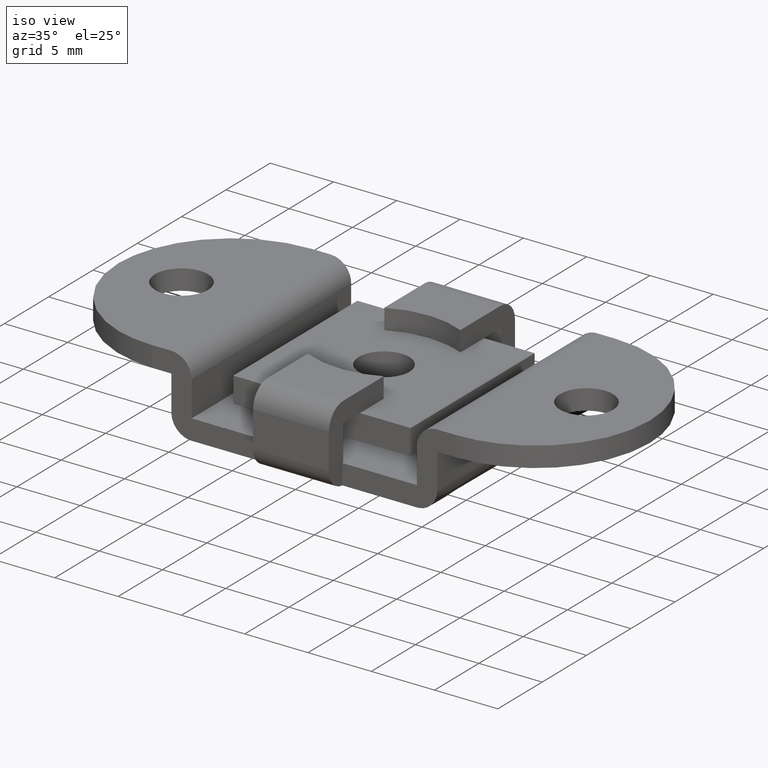
[diagram: clean part render]
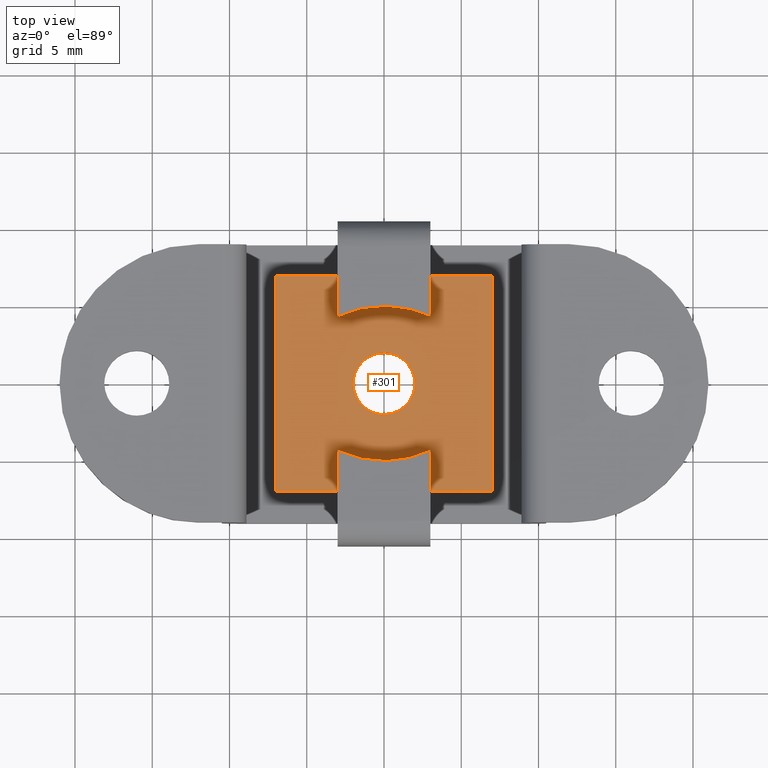
[diagram: tour spotlight — one face highlighted and labeled with its STEP entity id]
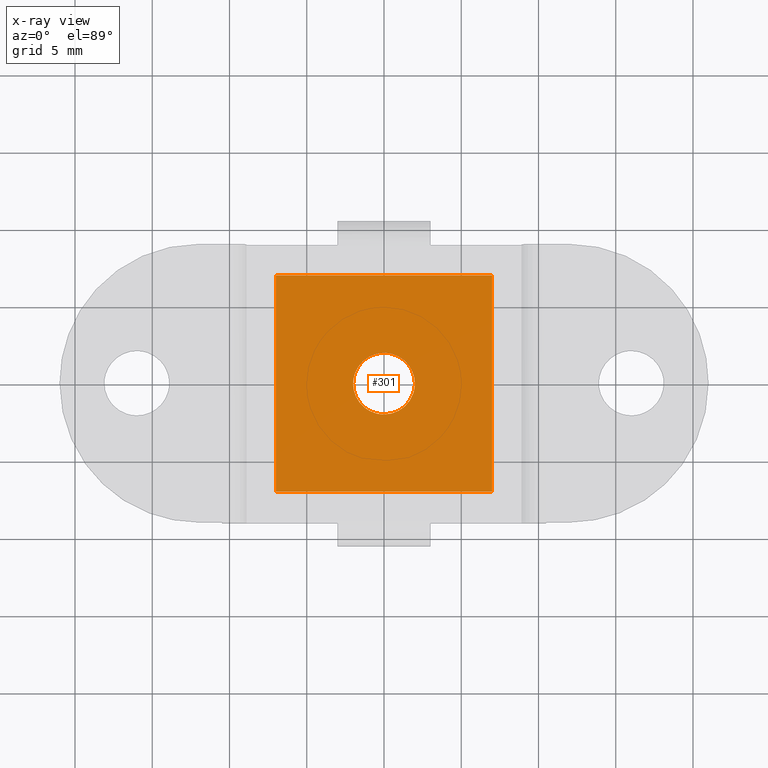
[diagram: x-ray of the same camera — body ghosted, this tour face saturated]
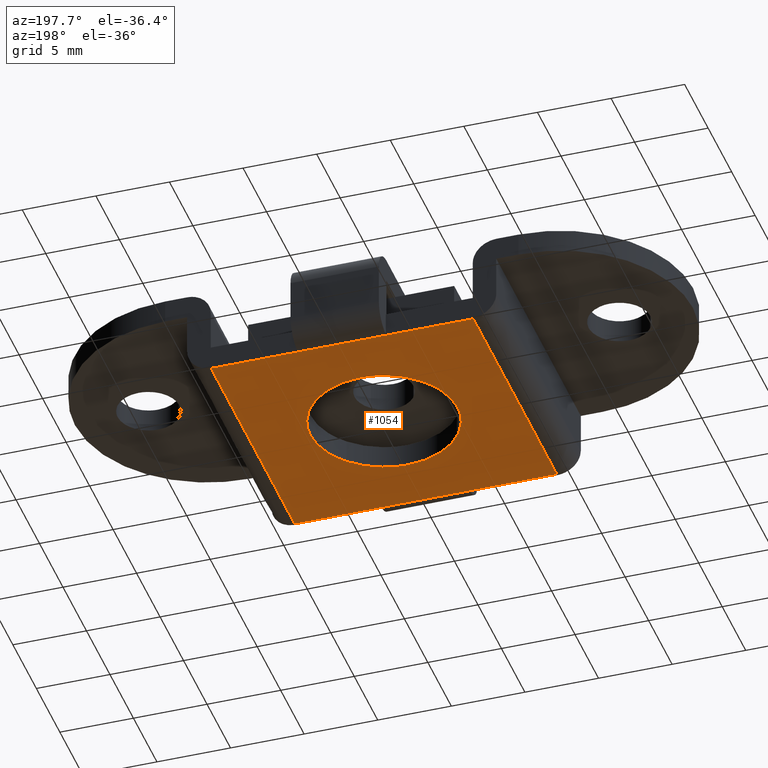
[diagram: tour spotlight — one face highlighted and labeled with its STEP entity id]
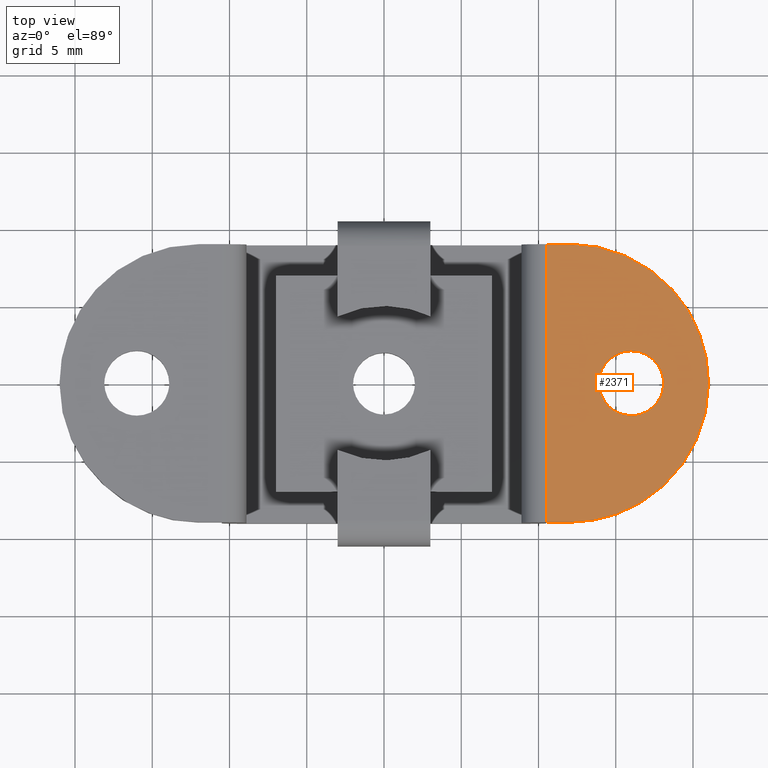
[diagram: tour spotlight — one face highlighted and labeled with its STEP entity id]
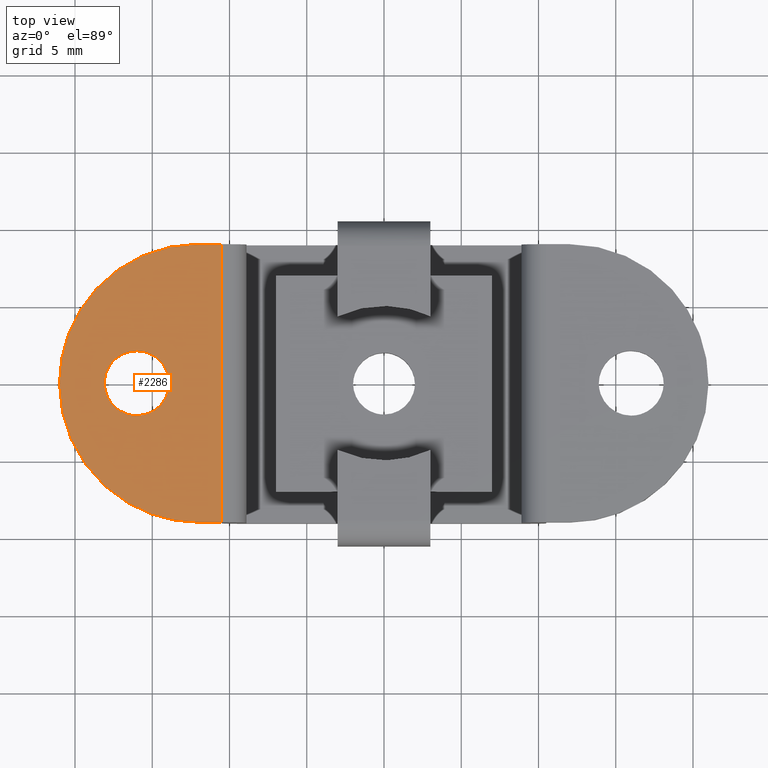
[diagram: tour spotlight — one face highlighted and labeled with its STEP entity id]
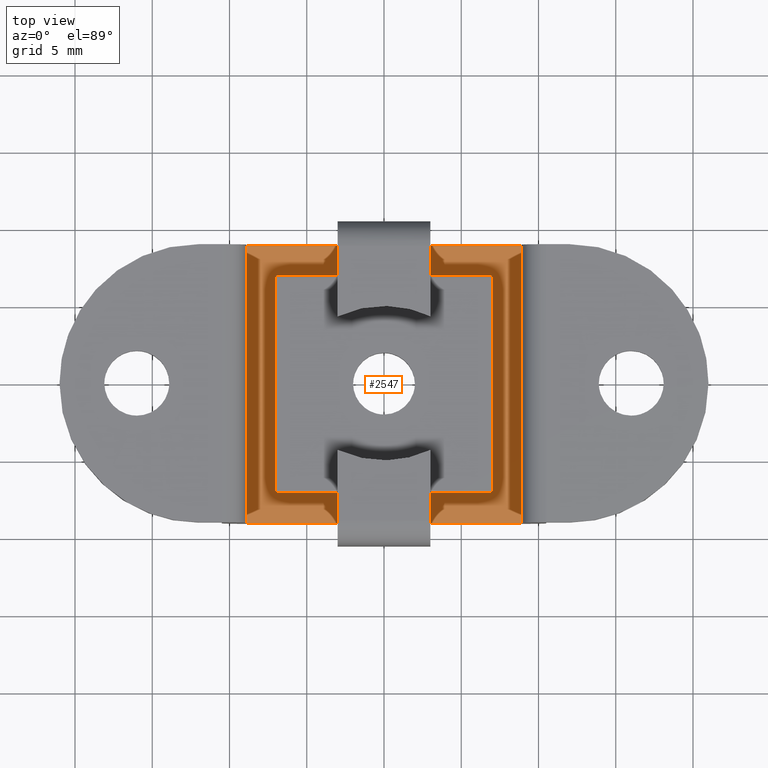
[diagram: tour spotlight — one face highlighted and labeled with its STEP entity id]
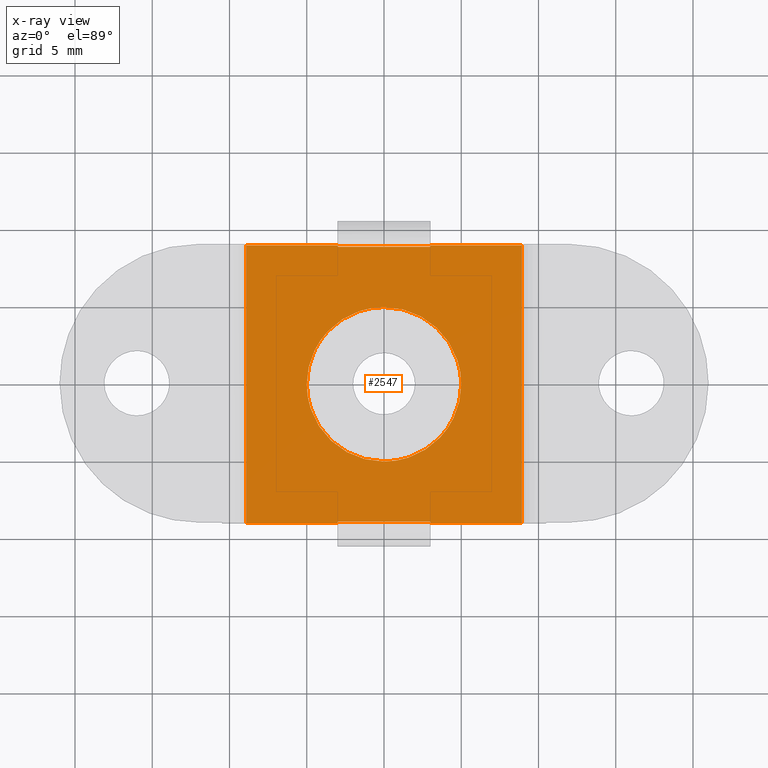
[diagram: x-ray of the same camera — body ghosted, this tour face saturated]
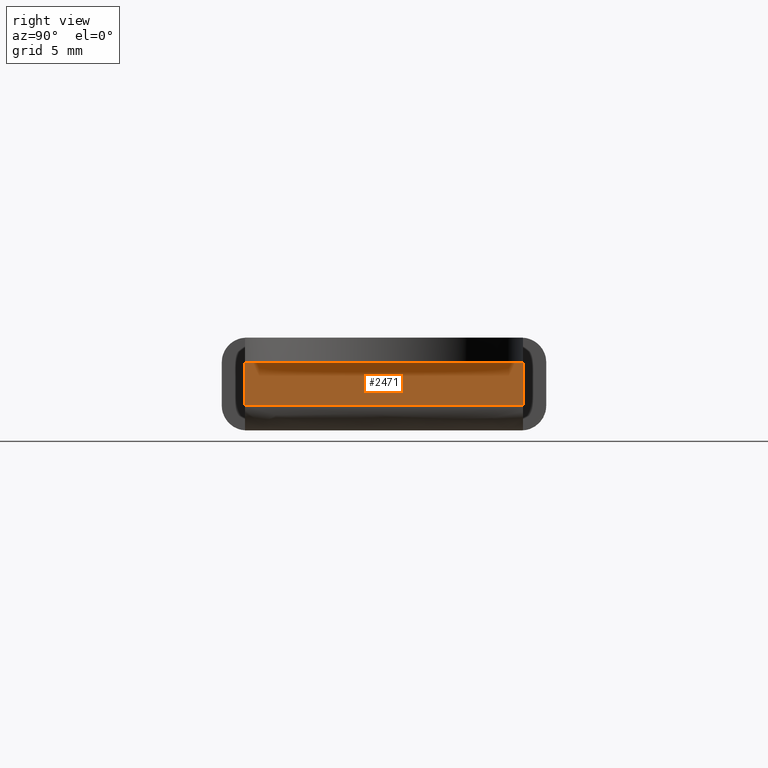
[diagram: tour spotlight — one face highlighted and labeled with its STEP entity id]
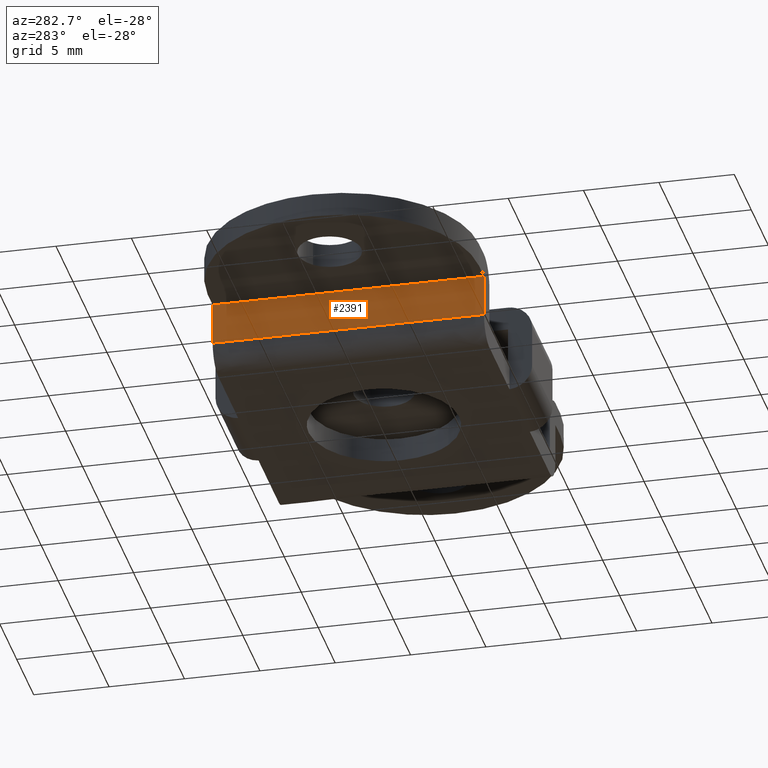
[diagram: tour spotlight — one face highlighted and labeled with its STEP entity id]
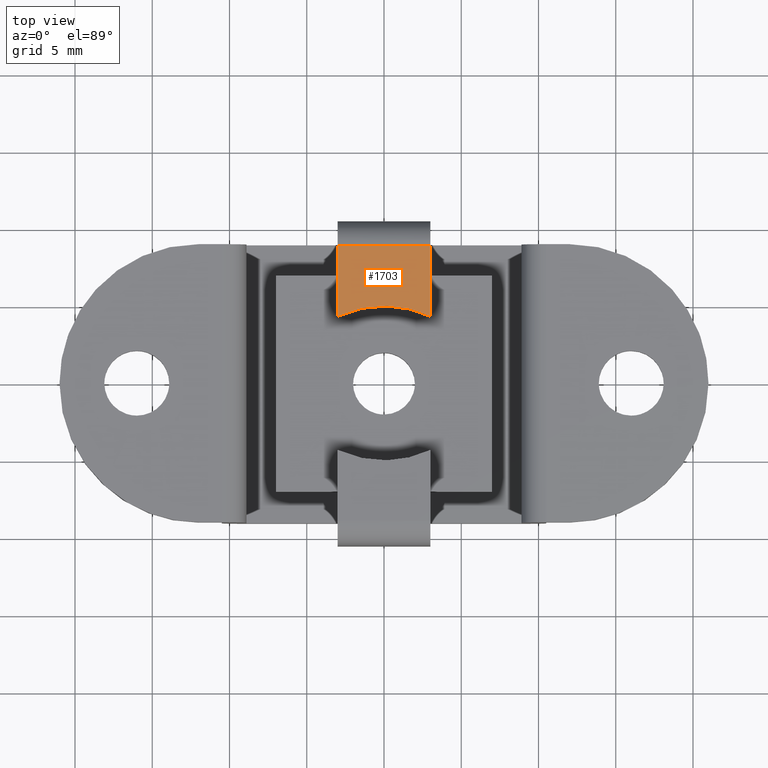
[diagram: tour spotlight — one face highlighted and labeled with its STEP entity id]
A machine part: a face-by-face anatomy tour. The part has 52 B-rep faces; the first image is the clean iso view, then the 8 largest visible faces are spotlighted one at a time (largest first), each with its STEP entity span.

Face 1 — top view, entity #301. An x-ray twin of the same camera follows (body ghosted, this face saturated) — the face is partly hidden behind the body. In plain terms, the highlighted face is a freeform B-spline surface patch.
Definition (entity closure, byte-faithful):
#64=CARTESIAN_POINT('',(1.351180487566418,-1.474554782602426,4.400000000000000));
#65=VERTEX_POINT('',#64);
#71=CARTESIAN_POINT('',(2.0,0.0,4.400000000000000));
#72=VERTEX_POINT('',#71);
#73=CARTESIAN_POINT('',(1.351180487566418,-1.474554782602426,4.400000000000000));
#74=CARTESIAN_POINT('',(1.459434956353504,-1.375388385996986,4.400000000000000));
#75=CARTESIAN_POINT('',(1.648226956466205,-1.159614940922242,4.400000000000006));
#76=CARTESIAN_POINT('',(1.854139141784489,-0.787336147316812,4.399999999999992));
#77=CARTESIAN_POINT('',(1.973906876970808,-0.397242263438106,4.400000000000010));
#78=CARTESIAN_POINT('',(2.000013820897323,-0.129536868906021,4.399999999999989));
#79=CARTESIAN_POINT('',(2.0,0.0,4.400000000000000));
#80=B_SPLINE_CURVE_WITH_KNOTS('',3,(#73,#74,#75,#76,#77,#78,#79),.UNSPECIFIED.,.F.,.U.,(4,1,1,1,4),(0.000000014151104,0.440426449850594,0.854937265086252,1.269463670213340,1.658074454876654),.UNSPECIFIED.);
#81=EDGE_CURVE('',#65,#72,#80,.T.);
#83=CARTESIAN_POINT('',(-0.000000518850291,1.999999999999933,4.400000000000000));
#84=VERTEX_POINT('',#83);
#85=CARTESIAN_POINT('',(2.0,0.0,4.400000000000000));
#86=CARTESIAN_POINT('',(2.000125272684084,0.212730369597694,4.400000000000007));
#87=CARTESIAN_POINT('',(1.947276652883236,0.539895710082316,4.399999999999999));
#88=CARTESIAN_POINT('',(1.779004922701553,0.932347028074610,4.400000000000002));
#89=CARTESIAN_POINT('',(1.590298404869592,1.230373634891019,4.399999999999998));
#90=CARTESIAN_POINT('',(1.373407912367068,1.466743427931498,4.400000000000006));
#91=CARTESIAN_POINT('',(1.095545465897606,1.683589619374116,4.399999999999990));
#92=CARTESIAN_POINT('',(0.850678156236381,1.818357956040366,4.399999999999974));
#93=CARTESIAN_POINT('',(0.474460972035872,1.958219444746794,4.400000000000017));
#94=CARTESIAN_POINT('',(0.204546773724535,2.000111577101551,4.400000000000013));
#95=CARTESIAN_POINT('',(-0.000000518850291,1.999999999999933,4.400000000000000));
#96=B_SPLINE_CURVE_WITH_KNOTS('',3,(#85,#86,#87,#88,#89,#90,#91,#92,#93,#94,#95),.UNSPECIFIED.,.F.,.U.,(4,1,1,1,1,1,1,1,4),(0.000000047114152,0.638138985832025,0.981755047691077,1.276282253819380,1.693512718911984,1.938962087718916,2.331665222778876,2.528020306702318,3.141612658188444),.UNSPECIFIED.);
#97=EDGE_CURVE('',#72,#84,#96,.T.);
#99=CARTESIAN_POINT('',(-1.351180487566412,1.474554782602420,4.400000000000000));
#100=VERTEX_POINT('',#99);
#101=CARTESIAN_POINT('',(-0.000000518850291,1.999999999999933,4.400000000000000));
#102=CARTESIAN_POINT('',(-0.216372920081346,2.000145730853857,4.399999999999998));
#103=CARTESIAN_POINT('',(-0.540798161024883,1.946793413828000,4.399999999999997));
#104=CARTESIAN_POINT('',(-0.996675290126308,1.750987424910407,4.399999999999995));
#105=CARTESIAN_POINT('',(-1.225881023420056,1.589437802582806,4.400000000000013));
#106=CARTESIAN_POINT('',(-1.351180487566412,1.474554782602420,4.400000000000000));
#107=B_SPLINE_CURVE_WITH_KNOTS('',3,(#101,#102,#103,#104,#105,#106),.UNSPECIFIED.,.F.,.U.,(4,1,1,4),(0.000000010568958,0.649053716328180,0.973569387800946,1.483537675976727),.UNSPECIFIED.);
#108=EDGE_CURVE('',#84,#100,#107,.T.);
#149=CARTESIAN_POINT('',(-2.0,0.0,4.400000000000000));
#150=VERTEX_POINT('',#149);
#151=CARTESIAN_POINT('',(-1.351180487566412,1.474554782602420,4.400000000000000));
#152=CARTESIAN_POINT('',(-1.459434966422765,1.375388384878932,4.400000000000000));
#153=CARTESIAN_POINT('',(-1.648226902440376,1.159614898733438,4.400000000000000));
#154=CARTESIAN_POINT('',(-1.854139271044690,0.787336238413096,4.399999999999989));
#155=CARTESIAN_POINT('',(-1.973906756021458,0.397242237387524,4.400000000000041));
#156=CARTESIAN_POINT('',(-2.000013939165571,0.129536852767964,4.399999999999950));
#157=CARTESIAN_POINT('',(-2.0,0.0,4.400000000000000));
#158=B_SPLINE_CURVE_WITH_KNOTS('',3,(#151,#152,#153,#154,#155,#156,#157),.UNSPECIFIED.,.F.,.U.,(4,1,1,1,4),(0.000000014151041,0.440426449850542,0.854937265086217,1.269463670213322,1.658074454876651),.UNSPECIFIED.);
#159=EDGE_CURVE('',#100,#150,#158,.T.);
#161=CARTESIAN_POINT('',(0.000000518850326,-1.999999999999933,4.400000000000000));
#162=VERTEX_POINT('',#161);
#163=CARTESIAN_POINT('',(-2.0,0.0,4.400000000000000));
#164=CARTESIAN_POINT('',(-2.000035840705778,-0.155444937833248,4.400000000000009));
#165=CARTESIAN_POINT('',(-1.966439067817386,-0.441769275213017,4.399999999999989));
#166=CARTESIAN_POINT('',(-1.819386238457925,-0.869336198897017,4.400000000000007));
#167=CARTESIAN_POINT('',(-1.598843479674865,-1.227228815093508,4.400000000000006));
#168=CARTESIAN_POINT('',(-1.268154482304708,-1.570361708533407,4.399999999999991));
#169=CARTESIAN_POINT('',(-0.885719721066033,-1.815849755062513,4.400000000000021));
#170=CARTESIAN_POINT('',(-0.433591537164645,-1.968230859623952,4.399999999999952));
#171=CARTESIAN_POINT('',(-0.147262423949933,-2.000022840850602,4.400000000000031));
#172=CARTESIAN_POINT('',(0.000000518850326,-1.999999999999933,4.400000000000000));
#173=B_SPLINE_CURVE_WITH_KNOTS('',3,(#163,#164,#165,#166,#167,#168,#169,#170,#171,#172),.UNSPECIFIED.,.F.,.U.,(4,1,1,1,1,1,1,4),(0.000000047113517,0.466327554555518,0.859035971532163,1.349914260320921,1.718068675593460,2.282577635544291,2.699826096089002,3.141612658188471),.UNSPECIFIED.);
#174=EDGE_CURVE('',#150,#162,#173,.T.);
#176=CARTESIAN_POINT('',(0.000000518850326,-1.999999999999933,4.400000000000000));
#177=CARTESIAN_POINT('',(0.185450035379458,-2.000065400917898,4.399999999999999));
#178=CARTESIAN_POINT('',(0.471294441097113,-1.959941302158816,4.400000000000019));
#179=CARTESIAN_POINT('',(0.936560750189208,-1.788259469791923,4.399999999999976));
#180=CARTESIAN_POINT('',(1.197433168365320,-1.615598168457326,4.400000000000029));
#181=CARTESIAN_POINT('',(1.351180487566418,-1.474554782602426,4.400000000000000));
#182=B_SPLINE_CURVE_WITH_KNOTS('',3,(#176,#177,#178,#179,#180,#181),.UNSPECIFIED.,.F.,.U.,(4,1,1,4),(0.000000010568906,0.556326805501515,0.857667739118593,1.483537675976697),.UNSPECIFIED.);
#183=EDGE_CURVE('',#162,#65,#182,.T.);
#258=CARTESIAN_POINT('',(-7.699299972865284,7.699299972865378,4.400000000000000));
#259=CARTESIAN_POINT('',(7.699300348374545,7.699299972865378,4.400000000000000));
#260=CARTESIAN_POINT('',(-7.699299972865284,-7.699300348374552,4.400000000000000));
#261=CARTESIAN_POINT('',(7.699300348374545,-7.699300348374552,4.400000000000000));
#262=B_SPLINE_SURFACE_WITH_KNOTS('',1,1,((#258,#260),(#259,#261)),.UNSPECIFIED.,.F.,.F.,.U.,(2,2),(2,2),(0.0,15.398600321239829),(0.0,15.398600321239931),.UNSPECIFIED.);
#263=CARTESIAN_POINT('',(7.0,-7.0,4.400000000000000));
#264=VERTEX_POINT('',#263);
#265=CARTESIAN_POINT('',(7.0,7.000000000000091,4.400000000000000));
#266=VERTEX_POINT('',#265);
#267=CARTESIAN_POINT('',(7.0,-7.0,4.400000000000000));
#268=CARTESIAN_POINT('',(7.0,7.000000000000091,4.400000000000000));
#269=QUASI_UNIFORM_CURVE('',1,(#267,#268),.UNSPECIFIED.,.F.,.U.);
#270=EDGE_CURVE('',#264,#266,#269,.T.);
#271=ORIENTED_EDGE('',*,*,#270,.T.);
#272=CARTESIAN_POINT('',(-7.0,7.000000000000091,4.400000000000000));
#273=VERTEX_POINT('',#272);
#274=CARTESIAN_POINT('',(7.0,7.000000000000091,4.400000000000000));
#275=CARTESIAN_POINT('',(-7.0,7.000000000000091,4.400000000000000));
#276=QUASI_UNIFORM_CURVE('',1,(#274,#275),.UNSPECIFIED.,.F.,.U.);
#277=EDGE_CURVE('',#266,#273,#276,.T.);
#278=ORIENTED_EDGE('',*,*,#277,.T.);
#279=CARTESIAN_POINT('',(-7.0,-7.0,4.400000000000000));
#280=VERTEX_POINT('',#279);
#281=CARTESIAN_POINT('',(-7.0,7.000000000000091,4.400000000000000));
#282=CARTESIAN_POINT('',(-7.0,-7.0,4.400000000000000));
#283=QUASI_UNIFORM_CURVE('',1,(#281,#282),.UNSPECIFIED.,.F.,.U.);
#284=EDGE_CURVE('',#273,#280,#283,.T.);
#285=ORIENTED_EDGE('',*,*,#284,.T.);
#286=CARTESIAN_POINT('',(-7.0,-7.0,4.400000000000000));
#287=CARTESIAN_POINT('',(7.0,-7.0,4.400000000000000));
#288=QUASI_UNIFORM_CURVE('',1,(#286,#287),.UNSPECIFIED.,.F.,.U.);
#289=EDGE_CURVE('',#280,#264,#288,.T.);
#290=ORIENTED_EDGE('',*,*,#289,.T.);
#291=EDGE_LOOP('',(#271,#278,#285,#290));
#292=FACE_OUTER_BOUND('',#291,.T.);
#293=ORIENTED_EDGE('',*,*,#174,.F.);
#294=ORIENTED_EDGE('',*,*,#159,.F.);
#295=ORIENTED_EDGE('',*,*,#108,.F.);
#296=ORIENTED_EDGE('',*,*,#97,.F.);
#297=ORIENTED_EDGE('',*,*,#81,.F.);
#298=ORIENTED_EDGE('',*,*,#183,.F.);
#299=EDGE_LOOP('',(#293,#294,#295,#296,#297,#298));
#300=FACE_BOUND('',#299,.T.);
#301=ADVANCED_FACE('',(#292,#300),#262,.F.);

Face 2 — auxiliary view, entity #1054. In plain terms, the highlighted face is a freeform B-spline surface patch.
Definition (entity closure, byte-faithful):
#594=CARTESIAN_POINT('',(3.626871793444205,-3.441772825803209,1.732847E-012));
#595=VERTEX_POINT('',#594);
#596=CARTESIAN_POINT('',(-0.000000324236915,-4.999999999999989,0.0));
#597=VERTEX_POINT('',#596);
#598=CARTESIAN_POINT('',(3.626871793444205,-3.441772825803209,1.732847E-012));
#599=CARTESIAN_POINT('',(3.423215406721647,-3.656422929322394,1.635544E-012));
#600=CARTESIAN_POINT('',(2.977634978754980,-4.049393712816439,1.422654E-012));
#601=CARTESIAN_POINT('',(2.242925987740639,-4.495113645645178,1.071625E-012));
#602=CARTESIAN_POINT('',(1.533339453622273,-4.776247336540807,7.325989E-013));
#603=CARTESIAN_POINT('',(0.792547160313471,-4.955773697101916,3.786632E-013));
#604=CARTESIAN_POINT('',(0.295889655508276,-5.000031321960930,1.413703E-013));
#605=CARTESIAN_POINT('',(-0.000000324236915,-4.999999999999989,0.0));
#606=B_SPLINE_CURVE_WITH_KNOTS('',3,(#598,#599,#600,#601,#602,#603,#604,#605),.UNSPECIFIED.,.F.,.U.,(4,1,1,1,1,4),(7.543394E-009,0.887664570450514,1.775335467180066,2.567887494586449,3.170233032252343,4.057897595160039),.UNSPECIFIED.);
#607=EDGE_CURVE('',#595,#597,#606,.T.);
#609=CARTESIAN_POINT('',(-5.0,0.0,0.0));
#610=VERTEX_POINT('',#609);
#611=CARTESIAN_POINT('',(-0.000000324236915,-4.999999999999989,0.0));
#612=CARTESIAN_POINT('',(-0.460212270313453,-5.000151425749215,0.0));
#613=CARTESIAN_POINT('',(-1.145302321775578,-4.904740234089545,0.0));
#614=CARTESIAN_POINT('',(-1.955935730597478,-4.614576344565321,0.0));
#615=CARTESIAN_POINT('',(-2.643068629899349,-4.271434348390238,0.0));
#616=CARTESIAN_POINT('',(-3.268439175093524,-3.819375680652176,0.0));
#617=CARTESIAN_POINT('',(-3.929981199658527,-3.133034108355920,0.0));
#618=CARTESIAN_POINT('',(-4.377741891687538,-2.467352349573585,0.0));
#619=CARTESIAN_POINT('',(-4.708041492092798,-1.728205650504709,0.0));
#620=CARTESIAN_POINT('',(-4.936021967824107,-0.951043263126143,0.0));
#621=CARTESIAN_POINT('',(-5.000064047398016,-0.357932923622321,0.0));
#622=CARTESIAN_POINT('',(-5.0,0.0,0.0));
#623=B_SPLINE_CURVE_WITH_KNOTS('',3,(#611,#612,#613,#614,#615,#616,#617,#618,#619,#620,#621,#622),.UNSPECIFIED.,.F.,.U.,(4,1,1,1,1,1,1,1,1,4),(0.000000026666211,1.380583045920688,2.055538306480571,2.577092645472697,3.681570689012800,4.356499960044744,5.430296533139000,6.074573718913661,6.780210716973892,7.853993771847659),.UNSPECIFIED.);
#624=EDGE_CURVE('',#597,#610,#623,.T.);
#626=CARTESIAN_POINT('',(-3.626871793444213,3.441772825803218,1.732847E-012));
#627=VERTEX_POINT('',#626);
#628=CARTESIAN_POINT('',(-5.0,0.0,0.0));
#629=CARTESIAN_POINT('',(-5.000053494405858,0.336117840370970,1.692269E-013));
#630=CARTESIAN_POINT('',(-4.949957881565231,0.830377166425589,4.180741E-013));
#631=CARTESIAN_POINT('',(-4.769392439909037,1.540135160160426,7.754195E-013));
#632=CARTESIAN_POINT('',(-4.569861967764408,2.058024385329718,1.036164E-012));
#633=CARTESIAN_POINT('',(-4.209040209419705,2.740461956833875,1.379754E-012));
#634=CARTESIAN_POINT('',(-3.885524559924932,3.169333928384033,1.595680E-012));
#635=CARTESIAN_POINT('',(-3.626871793444213,3.441772825803218,1.732847E-012));
#636=B_SPLINE_CURVE_WITH_KNOTS('',3,(#628,#629,#630,#631,#632,#633,#634,#635),.UNSPECIFIED.,.F.,.U.,(4,1,1,1,1,4),(1.770243E-009,1.008342617228866,1.482857122155396,2.194627639680285,2.669142148203799,3.796113354029980),.UNSPECIFIED.);
#637=EDGE_CURVE('',#610,#627,#636,.T.);
#714=CARTESIAN_POINT('',(5.0,0.0,0.0));
#715=VERTEX_POINT('',#714);
#716=CARTESIAN_POINT('',(5.0,0.0,0.0));
#717=CARTESIAN_POINT('',(5.000046704887869,-0.336115439864950,1.692257E-013));
#718=CARTESIAN_POINT('',(4.937957138354636,-0.949007422992705,4.778015E-013));
#719=CARTESIAN_POINT('',(4.676071234564541,-1.843939069947303,9.283772E-013));
#720=CARTESIAN_POINT('',(4.259448828601072,-2.679249389514588,1.348935E-012));
#721=CARTESIAN_POINT('',(3.858270978848668,-3.197994253214128,1.610110E-012));
#722=CARTESIAN_POINT('',(3.626871793444205,-3.441772825803209,1.732847E-012));
#723=B_SPLINE_CURVE_WITH_KNOTS('',3,(#716,#717,#718,#719,#720,#721,#722),.UNSPECIFIED.,.F.,.U.,(4,1,1,1,4),(1.770428E-009,1.008342617229010,1.838742576036139,2.787770738571724,3.796113354029975),.UNSPECIFIED.);
#724=EDGE_CURVE('',#715,#595,#723,.T.);
#769=CARTESIAN_POINT('',(0.000000324236865,4.999999999999989,0.0));
#770=VERTEX_POINT('',#769);
#771=CARTESIAN_POINT('',(-3.626871793444213,3.441772825803218,1.732847E-012));
#772=CARTESIAN_POINT('',(-3.314173550342795,3.771486077850311,1.583446E-012));
#773=CARTESIAN_POINT('',(-2.714635786249023,4.251348625751513,1.296999E-012));
#774=CARTESIAN_POINT('',(-1.815060463509833,4.682479856218651,8.671995E-013));
#775=CARTESIAN_POINT('',(-0.951045729116754,4.935921547258900,4.543907E-013));
#776=CARTESIAN_POINT('',(-0.359297670771100,5.000064893102014,1.716654E-013));
#777=CARTESIAN_POINT('',(0.000000324236865,4.999999999999989,0.0));
#778=B_SPLINE_CURVE_WITH_KNOTS('',3,(#771,#772,#773,#774,#775,#776,#777),.UNSPECIFIED.,.F.,.U.,(4,1,1,1,4),(7.544663E-009,1.363201717148096,2.282562135519449,2.980018384952845,4.057897595159989),.UNSPECIFIED.);
#779=EDGE_CURVE('',#627,#770,#778,.T.);
#781=CARTESIAN_POINT('',(0.000000324236865,4.999999999999989,0.0));
#782=CARTESIAN_POINT('',(0.327249904620431,5.000044914051012,0.0));
#783=CARTESIAN_POINT('',(0.910145084251712,4.942556555088977,0.0));
#784=CARTESIAN_POINT('',(1.769427718381630,4.701942953034152,0.0));
#785=CARTESIAN_POINT('',(2.410013930617477,4.398960781790801,0.0));
#786=CARTESIAN_POINT('',(3.027773277870901,3.997054960269302,0.0));
#787=CARTESIAN_POINT('',(3.590338461832621,3.517804623480342,0.0));
#788=CARTESIAN_POINT('',(4.085478277040822,2.914452778093998,0.0));
#789=CARTESIAN_POINT('',(4.469852508893901,2.273133738398760,0.0));
#790=CARTESIAN_POINT('',(4.754767195928713,1.614117797312634,0.0));
#791=CARTESIAN_POINT('',(4.954146126784334,0.828343329027123,0.0));
#792=CARTESIAN_POINT('',(5.000016885599007,0.276116325256504,0.0));
#793=CARTESIAN_POINT('',(5.0,0.0,0.0));
#794=B_SPLINE_CURVE_WITH_KNOTS('',3,(#781,#782,#783,#784,#785,#786,#787,#788,#789,#790,#791,#792,#793),.UNSPECIFIED.,.F.,.U.,(4,1,1,1,1,1,1,1,1,1,4),(0.000000026674506,0.981741439466369,1.748740557944819,2.669137173670099,3.098653060915373,3.957660110620444,4.878061897331879,5.430296533142011,6.197292986501568,7.025646123378274,7.853993771847650),.UNSPECIFIED.);
#795=EDGE_CURVE('',#770,#715,#794,.T.);
#1011=CARTESIAN_POINT('',(9.789109965500147,-9.789109965500147,0.0));
#1012=CARTESIAN_POINT('',(-9.789110442933351,-9.789109965500147,0.0));
#1013=CARTESIAN_POINT('',(9.789109965500147,9.789110442933351,0.0));
#1014=CARTESIAN_POINT('',(-9.789110442933351,9.789110442933351,0.0));
#1015=B_SPLINE_SURFACE_WITH_KNOTS('',1,1,((#1011,#1013),(#1012,#1014)),.UNSPECIFIED.,.F.,.F.,.U.,(2,2),(2,2),(0.0,19.578220408433499),(0.0,19.578220408433499),.UNSPECIFIED.);
#1016=CARTESIAN_POINT('',(8.900000000000000,-8.900000000000000,0.0));
#1017=VERTEX_POINT('',#1016);
#1018=CARTESIAN_POINT('',(-8.900000000000000,-8.900000000000000,0.0));
#1019=VERTEX_POINT('',#1018);
#1020=CARTESIAN_POINT('',(8.900000000000000,-8.900000000000000,0.0));
#1021=CARTESIAN_POINT('',(-8.900000000000000,-8.900000000000000,0.0));
#1022=QUASI_UNIFORM_CURVE('',1,(#1020,#1021),.UNSPECIFIED.,.F.,.U.);
#1023=EDGE_CURVE('',#1017,#1019,#1022,.T.);
#1024=ORIENTED_EDGE('',*,*,#1023,.T.);
#1025=CARTESIAN_POINT('',(-8.900000000000000,8.900000000000000,0.0));
#1026=VERTEX_POINT('',#1025);
#1027=CARTESIAN_POINT('',(-8.900000000000000,-8.900000000000000,0.0));
#1028=CARTESIAN_POINT('',(-8.900000000000000,8.900000000000000,0.0));
#1029=QUASI_UNIFORM_CURVE('',1,(#1027,#1028),.UNSPECIFIED.,.F.,.U.);
#1030=EDGE_CURVE('',#1019,#1026,#1029,.T.);
#1031=ORIENTED_EDGE('',*,*,#1030,.T.);
#1032=CARTESIAN_POINT('',(8.900000000000000,8.900000000000000,0.0));
#1033=VERTEX_POINT('',#1032);
#1034=CARTESIAN_POINT('',(-8.900000000000000,8.900000000000000,0.0));
#1035=CARTESIAN_POINT('',(8.900000000000000,8.900000000000000,0.0));
#1036=QUASI_UNIFORM_CURVE('',1,(#1034,#1035),.UNSPECIFIED.,.F.,.U.);
#1037=EDGE_CURVE('',#1026,#1033,#1036,.T.);
#1038=ORIENTED_EDGE('',*,*,#1037,.T.);
#1039=CARTESIAN_POINT('',(8.900000000000000,8.900000000000000,0.0));
#1040=CARTESIAN_POINT('',(8.900000000000000,-8.900000000000000,0.0));
#1041=QUASI_UNIFORM_CURVE('',1,(#1039,#1040),.UNSPECIFIED.,.F.,.U.);
#1042=EDGE_CURVE('',#1033,#1017,#1041,.T.);
#1043=ORIENTED_EDGE('',*,*,#1042,.T.);
#1044=EDGE_LOOP('',(#1024,#1031,#1038,#1043));
#1045=FACE_OUTER_BOUND('',#1044,.T.);
#1046=ORIENTED_EDGE('',*,*,#624,.F.);
#1047=ORIENTED_EDGE('',*,*,#607,.F.);
#1048=ORIENTED_EDGE('',*,*,#724,.F.);
#1049=ORIENTED_EDGE('',*,*,#795,.F.);
#1050=ORIENTED_EDGE('',*,*,#779,.F.);
#1051=ORIENTED_EDGE('',*,*,#637,.F.);
#1052=EDGE_LOOP('',(#1046,#1047,#1048,#1049,#1050,#1051));
#1053=FACE_BOUND('',#1052,.T.);
#1054=ADVANCED_FACE('',(#1045,#1053),#1015,.T.);

Face 3 — top view, entity #2371. In plain terms, the highlighted face is a freeform B-spline surface patch.
Definition (entity closure, byte-faithful):
#399=CARTESIAN_POINT('',(14.581260498520830,-1.548282520279563,6.0));
#400=VERTEX_POINT('',#399);
#406=CARTESIAN_POINT('',(15.999999487898320,-2.099999999999938,6.0));
#407=VERTEX_POINT('',#406);
#408=CARTESIAN_POINT('',(15.999999487898320,-2.099999999999938,6.0));
#409=CARTESIAN_POINT('',(15.862076283162880,-2.100017602895612,5.999999999999991));
#410=CARTESIAN_POINT('',(15.586240718931410,-2.072728873233978,6.000000000000012));
#411=CARTESIAN_POINT('',(15.204084069787680,-1.956390947703279,5.999999999999999));
#412=CARTESIAN_POINT('',(14.864763140071670,-1.779289379170065,5.999999999999996));
#413=CARTESIAN_POINT('',(14.670978065494211,-1.630505774760450,5.999999999999981));
#414=CARTESIAN_POINT('',(14.581260498520830,-1.548282520279563,6.0));
#415=B_SPLINE_CURVE_WITH_KNOTS('',3,(#408,#409,#410,#411,#412,#413,#414),.UNSPECIFIED.,.F.,.U.,(4,1,1,1,4),(0.000000011097158,0.413768375171426,0.827530424680338,1.192625660979388,1.557714582713103),.UNSPECIFIED.);
#416=EDGE_CURVE('',#407,#400,#415,.T.);
#418=CARTESIAN_POINT('',(18.100000000000001,0.0,6.0));
#419=VERTEX_POINT('',#418);
#420=CARTESIAN_POINT('',(18.100000000000001,0.0,6.0));
#421=CARTESIAN_POINT('',(18.100086939034931,-0.206173555843778,5.999999999999996));
#422=CARTESIAN_POINT('',(18.045160243486059,-0.575514764453041,6.000000000000007));
#423=CARTESIAN_POINT('',(17.844674499679609,-1.035339620001508,5.999999999999998));
#424=CARTESIAN_POINT('',(17.604147260265460,-1.372399615545883,6.000000000000003));
#425=CARTESIAN_POINT('',(17.289459436833379,-1.679547146720291,6.000000000000012));
#426=CARTESIAN_POINT('',(16.920453760059939,-1.906906748417729,5.999999999999973));
#427=CARTESIAN_POINT('',(16.463850793409652,-2.063940389481433,6.000000000000038));
#428=CARTESIAN_POINT('',(16.171808127432030,-2.100047197243688,5.999999999999981));
#429=CARTESIAN_POINT('',(15.999999487898320,-2.099999999999938,6.0));
#430=B_SPLINE_CURVE_WITH_KNOTS('',3,(#420,#421,#422,#423,#424,#425,#426,#427,#428,#429),.UNSPECIFIED.,.F.,.U.,(4,1,1,1,1,1,1,4),(0.000000046078098,0.618504639973074,1.108160000424336,1.494727046472961,1.855502201907417,2.422477338068444,2.783279105107428,3.298693272671217),.UNSPECIFIED.);
#431=EDGE_CURVE('',#419,#407,#430,.T.);
#433=CARTESIAN_POINT('',(17.418739501479170,1.548282520279557,6.0));
#434=VERTEX_POINT('',#433);
#435=CARTESIAN_POINT('',(17.418739501479170,1.548282520279557,6.0));
#436=CARTESIAN_POINT('',(17.592678430637559,1.389111595608765,5.999999999999996));
#437=CARTESIAN_POINT('',(17.846410872613500,1.062184082451126,6.000000000000013));
#438=CARTESIAN_POINT('',(18.057361464461820,0.516832787514381,5.999999999999973));
#439=CARTESIAN_POINT('',(18.100043193173921,0.172286885963432,6.000000000000020));
#440=CARTESIAN_POINT('',(18.100000000000001,0.0,6.0));
#441=B_SPLINE_CURVE_WITH_KNOTS('',3,(#435,#436,#437,#438,#439,#440),.UNSPECIFIED.,.F.,.U.,(4,1,1,4),(0.000000012917390,0.707277324707163,1.224123831606799,1.740978180980072),.UNSPECIFIED.);
#442=EDGE_CURVE('',#434,#419,#441,.T.);
#535=CARTESIAN_POINT('',(16.000000512101650,2.099999999999938,6.0));
#536=VERTEX_POINT('',#535);
#537=CARTESIAN_POINT('',(16.000000512101650,2.099999999999938,6.0));
#538=CARTESIAN_POINT('',(16.219074598343500,2.100132897645841,6.000000000000004));
#539=CARTESIAN_POINT('',(16.543508016959180,2.048726806813803,5.999999999999977));
#540=CARTESIAN_POINT('',(17.025473671936240,1.851591557745356,6.000000000000020));
#541=CARTESIAN_POINT('',(17.275222566807720,1.679887215735391,5.999999999999996));
#542=CARTESIAN_POINT('',(17.418739501479170,1.548282520279557,6.0));
#543=B_SPLINE_CURVE_WITH_KNOTS('',3,(#537,#538,#539,#540,#541,#542),.UNSPECIFIED.,.F.,.U.,(4,1,1,4),(0.000000011095856,0.657163454463583,0.973571439425768,1.557714582713123),.UNSPECIFIED.);
#544=EDGE_CURVE('',#536,#434,#543,.T.);
#546=CARTESIAN_POINT('',(13.900000000000000,0.0,6.0));
#547=VERTEX_POINT('',#546);
#548=CARTESIAN_POINT('',(13.900000000000000,0.0,6.0));
#549=CARTESIAN_POINT('',(13.899975534737941,0.146034987637824,6.000000000000007));
#550=CARTESIAN_POINT('',(13.926098433175049,0.395142146565860,5.999999999999998));
#551=CARTESIAN_POINT('',(14.034050464736900,0.767419070396775,6.000000000000003));
#552=CARTESIAN_POINT('',(14.215744370824011,1.139784539395887,5.999999999999992));
#553=CARTESIAN_POINT('',(14.469939362493120,1.457364587029954,6.000000000000036));
#554=CARTESIAN_POINT('',(14.817294035167640,1.753321406069142,5.999999999999973));
#555=CARTESIAN_POINT('',(15.189409821139780,1.958150726001400,5.999999999999981));
#556=CARTESIAN_POINT('',(15.622035842221520,2.077802611561608,6.000000000000079));
#557=CARTESIAN_POINT('',(15.879739704256060,2.100008144871423,5.999999999999849));
#558=CARTESIAN_POINT('',(16.000000512101650,2.099999999999938,6.0));
#559=B_SPLINE_CURVE_WITH_KNOTS('',3,(#548,#549,#550,#551,#552,#553,#554,#555,#556,#557,#558),.UNSPECIFIED.,.F.,.U.,(4,1,1,1,1,1,1,1,4),(0.000000046077625,0.438101775746891,0.747359088849217,1.159698045679050,1.675103804851186,1.958593105948169,2.525562595561389,2.937908540679304,3.298693272671196),.UNSPECIFIED.);
#560=EDGE_CURVE('',#547,#536,#559,.T.);
#562=CARTESIAN_POINT('',(14.581260498520830,-1.548282520279563,6.0));
#563=CARTESIAN_POINT('',(14.474278733523040,-1.450283680106820,6.000000000000012));
#564=CARTESIAN_POINT('',(14.304963415943620,-1.259266107076499,5.999999999999983));
#565=CARTESIAN_POINT('',(14.111954685743040,-0.940213241667334,6.000000000000009));
#566=CARTESIAN_POINT('',(13.949041057475210,-0.534936546482762,6.000000000000003));
#567=CARTESIAN_POINT('',(13.899907481662320,-0.208567142881917,5.999999999999995));
#568=CARTESIAN_POINT('',(13.900000000000000,0.0,6.0));
#569=B_SPLINE_CURVE_WITH_KNOTS('',3,(#562,#563,#564,#565,#566,#567,#568),.UNSPECIFIED.,.F.,.U.,(4,1,1,1,4),(0.000000012918733,0.435244635113190,0.761680397375475,1.115310271773558,1.740978180980058),.UNSPECIFIED.);
#570=EDGE_CURVE('',#400,#547,#569,.T.);
#1133=CARTESIAN_POINT('',(10.500000000000000,9.0,6.0));
#1134=VERTEX_POINT('',#1133);
#1155=CARTESIAN_POINT('',(10.500000000000000,-9.0,6.0));
#1156=VERTEX_POINT('',#1155);
#1171=CARTESIAN_POINT('',(10.500000000000000,9.0,6.0));
#1172=CARTESIAN_POINT('',(10.500000000000000,-9.0,6.0));
#1173=QUASI_UNIFORM_CURVE('',1,(#1171,#1172),.UNSPECIFIED.,.F.,.U.);
#1174=EDGE_CURVE('',#1134,#1156,#1173,.T.);
#1863=CARTESIAN_POINT('',(12.0,9.0,6.0));
#1864=VERTEX_POINT('',#1863);
#1865=CARTESIAN_POINT('',(20.999999999999979,-0.000000492002263,5.999999999999999));
#1866=VERTEX_POINT('',#1865);
#1867=CARTESIAN_POINT('',(12.0,9.0,6.0));
#1868=CARTESIAN_POINT('',(12.386559123580160,9.000008877647325,6.000000000000004));
#1869=CARTESIAN_POINT('',(13.233315466013330,8.945378257814307,5.999999999999997));
#1870=CARTESIAN_POINT('',(14.552673809467141,8.670324509156375,5.999999999999991));
#1871=CARTESIAN_POINT('',(15.777685392209010,8.202089490778331,6.000000000000053));
#1872=CARTESIAN_POINT('',(16.745265029250241,7.665617651566062,5.999999999999919));
#1873=CARTESIAN_POINT('',(17.531951090156738,7.118756660277457,6.000000000000051));
#1874=CARTESIAN_POINT('',(18.427939340503190,6.350744385040343,5.999999999999888));
#1875=CARTESIAN_POINT('',(19.366672068470749,5.255739431751869,6.000000000000014));
#1876=CARTESIAN_POINT('',(20.110882340733159,3.978708712704968,6.000000000000002));
#1877=CARTESIAN_POINT('',(20.634251945051190,2.658292581724934,6.000000000000054));
#1878=CARTESIAN_POINT('',(20.933661779649871,1.362175122086249,5.999999999999841));
#1879=CARTESIAN_POINT('',(21.000013492620930,0.423377373264621,6.000000000000187));
#1880=CARTESIAN_POINT('',(20.999999999999979,-0.000000492002263,5.999999999999999));
#1881=B_SPLINE_CURVE_WITH_KNOTS('',3,(#1867,#1868,#1869,#1870,#1871,#1872,#1873,#1874,#1875,#1876,#1877,#1878,#1879,#1880),.UNSPECIFIED.,.F.,.U.,(4,1,1,1,1,1,1,1,1,1,1,4),(0.000000022780315,1.159680174825420,2.540271529334170,4.031309197684729,5.080555616253657,5.853691335475244,6.902931577631438,8.614839774243121,10.161102616878260,11.320798300691839,12.867052614014170,14.137189395567070),.UNSPECIFIED.);
#1882=EDGE_CURVE('',#1864,#1866,#1881,.T.);
#1884=CARTESIAN_POINT('',(12.0,-9.0,6.0));
#1885=VERTEX_POINT('',#1884);
#1886=CARTESIAN_POINT('',(20.999999999999979,-0.000000492002263,5.999999999999999));
#1887=CARTESIAN_POINT('',(21.000017458170330,-0.460192757562808,5.999999999999994));
#1888=CARTESIAN_POINT('',(20.922216221663181,-1.472622714565136,6.000000000000014));
#1889=CARTESIAN_POINT('',(20.576369840477451,-2.853372033155439,5.999999999999961));
#1890=CARTESIAN_POINT('',(20.045680813387062,-4.091254661129163,6.000000000000057));
#1891=CARTESIAN_POINT('',(19.470166318687632,-5.058146512001476,5.999999999999910));
#1892=CARTESIAN_POINT('',(18.749986696335810,-5.992755713522893,6.000000000000147));
#1893=CARTESIAN_POINT('',(17.977416455692971,-6.760610197586144,6.000000000000096));
#1894=CARTESIAN_POINT('',(17.101492625195188,-7.435549433114717,5.999999999999775));
#1895=CARTESIAN_POINT('',(16.236464570711320,-7.964907477823433,6.000000000000633));
#1896=CARTESIAN_POINT('',(15.062773889493410,-8.502585460576816,5.999999999999645));
#1897=CARTESIAN_POINT('',(13.638281368717999,-8.901461753935296,6.000000000000189));
#1898=CARTESIAN_POINT('',(12.533825617188660,-9.000046753430839,5.999999999999946));
#1899=CARTESIAN_POINT('',(12.0,-9.0,6.0));
#1900=B_SPLINE_CURVE_WITH_KNOTS('',3,(#1886,#1887,#1888,#1889,#1890,#1891,#1892,#1893,#1894,#1895,#1896,#1897,#1898,#1899),.UNSPECIFIED.,.F.,.U.,(4,1,1,1,1,1,1,1,1,1,1,4),(0.000000022798286,1.380580917047190,3.037284337878926,4.252204953771917,5.411893728071989,6.405927606251880,7.786493352747754,8.670067688307988,9.719315236568200,10.823786102033040,12.535715583765739,14.137188840964971),.UNSPECIFIED.);
#1901=EDGE_CURVE('',#1866,#1885,#1900,.T.);
#2343=CARTESIAN_POINT('',(9.975525020351036,-9.899099965112507,6.0));
#2344=CARTESIAN_POINT('',(21.524475261280891,-9.899099965112507,6.0));
#2345=CARTESIAN_POINT('',(9.975525020351036,9.899100447910129,6.0));
#2346=CARTESIAN_POINT('',(21.524475261280891,9.899100447910129,6.0));
#2347=B_SPLINE_SURFACE_WITH_KNOTS('',1,1,((#2343,#2345),(#2344,#2346)),.UNSPECIFIED.,.F.,.F.,.U.,(2,2),(2,2),(0.0,11.548950240929861),(0.0,19.798200413022631),.UNSPECIFIED.);
#2348=CARTESIAN_POINT('',(12.0,9.0,6.0));
#2349=CARTESIAN_POINT('',(10.500000000000000,9.0,6.0));
#2350=QUASI_UNIFORM_CURVE('',1,(#2348,#2349),.UNSPECIFIED.,.F.,.U.);
#2351=EDGE_CURVE('',#1864,#1134,#2350,.T.);
#2352=ORIENTED_EDGE('',*,*,#2351,.T.);
#2353=ORIENTED_EDGE('',*,*,#1174,.T.);
#2354=CARTESIAN_POINT('',(12.0,-9.0,6.0));
#2355=CARTESIAN_POINT('',(10.500000000000000,-9.0,6.0));
#2356=QUASI_UNIFORM_CURVE('',1,(#2354,#2355),.UNSPECIFIED.,.F.,.U.);
#2357=EDGE_CURVE('',#1885,#1156,#2356,.T.);
#2358=ORIENTED_EDGE('',*,*,#2357,.F.);
#2359=ORIENTED_EDGE('',*,*,#1901,.F.);
#2360=ORIENTED_EDGE('',*,*,#1882,.F.);
#2361=EDGE_LOOP('',(#2352,#2353,#2358,#2359,#2360));
#2362=FACE_OUTER_BOUND('',#2361,.T.);
#2363=ORIENTED_EDGE('',*,*,#560,.T.);
#2364=ORIENTED_EDGE('',*,*,#544,.T.);
#2365=ORIENTED_EDGE('',*,*,#442,.T.);
#2366=ORIENTED_EDGE('',*,*,#431,.T.);
#2367=ORIENTED_EDGE('',*,*,#416,.T.);
#2368=ORIENTED_EDGE('',*,*,#570,.T.);
#2369=EDGE_LOOP('',(#2363,#2364,#2365,#2366,#2367,#2368));
#2370=FACE_BOUND('',#2369,.T.);
#2371=ADVANCED_FACE('',(#2362,#2370),#2347,.T.);

Face 4 — top view, entity #2286. In plain terms, the highlighted face is a freeform B-spline surface patch.
Definition (entity closure, byte-faithful):
#832=CARTESIAN_POINT('',(-14.476713900802160,1.445544507450665,6.0));
#833=VERTEX_POINT('',#832);
#839=CARTESIAN_POINT('',(-16.000000512101650,2.099999999999938,6.0));
#840=VERTEX_POINT('',#839);
#841=CARTESIAN_POINT('',(-14.476713900802160,1.445544507450665,6.0));
#842=CARTESIAN_POINT('',(-14.617190560568890,1.593711484043368,6.000000000000009));
#843=CARTESIAN_POINT('',(-14.885391403838060,1.804133520347521,6.000000000000001));
#844=CARTESIAN_POINT('',(-15.405348990218300,2.039375682377373,6.000000000000007));
#845=CARTESIAN_POINT('',(-15.769186279203099,2.100134379405195,6.000000000000050));
#846=CARTESIAN_POINT('',(-16.000000512101650,2.099999999999938,6.0));
#847=B_SPLINE_CURVE_WITH_KNOTS('',3,(#841,#842,#843,#844,#845,#846),.UNSPECIFIED.,.F.,.U.,(4,1,1,4),(0.000000013370970,0.612494595998296,1.011940877106440,1.704325912010658),.UNSPECIFIED.);
#848=EDGE_CURVE('',#833,#840,#847,.T.);
#850=CARTESIAN_POINT('',(-18.100000000000001,0.0,6.0));
#851=VERTEX_POINT('',#850);
#852=CARTESIAN_POINT('',(-16.000000512101650,2.099999999999938,6.0));
#853=CARTESIAN_POINT('',(-16.171807783640070,2.100041514918341,5.999999999999997));
#854=CARTESIAN_POINT('',(-16.515405789018288,2.057601591833775,6.000000000000017));
#855=CARTESIAN_POINT('',(-16.943390267629830,1.892525328462123,5.999999999999978));
#856=CARTESIAN_POINT('',(-17.320507216173478,1.650442646713644,6.000000000000042));
#857=CARTESIAN_POINT('',(-17.613181813747818,1.368362274713230,5.999999999999893));
#858=CARTESIAN_POINT('',(-17.864683930263968,0.996897922856978,6.000000000000163));
#859=CARTESIAN_POINT('',(-18.049920703954950,0.549746130266517,5.999999999999930));
#860=CARTESIAN_POINT('',(-18.100074452988920,0.197581610387514,6.000000000000103));
#861=CARTESIAN_POINT('',(-18.100000000000001,0.0,6.0));
#862=B_SPLINE_CURVE_WITH_KNOTS('',3,(#852,#853,#854,#855,#856,#857,#858,#859,#860,#861),.UNSPECIFIED.,.F.,.U.,(4,1,1,1,1,1,1,4),(0.000000046252011,0.515415787775858,1.030845410788452,1.365876111623665,1.855501877025961,2.242075191238146,2.705963876297877,3.298692695409696),.UNSPECIFIED.);
#863=EDGE_CURVE('',#840,#851,#862,.T.);
#865=CARTESIAN_POINT('',(-17.523286099197840,-1.445544507450659,6.0));
#866=VERTEX_POINT('',#865);
#867=CARTESIAN_POINT('',(-18.100000000000001,0.0,6.0));
#868=CARTESIAN_POINT('',(-18.100028026367060,-0.149473970522556,5.999999999999981));
#869=CARTESIAN_POINT('',(-18.074171064151990,-0.390275636764554,6.000000000000020));
#870=CARTESIAN_POINT('',(-17.975703712147538,-0.734291597053197,5.999999999999979));
#871=CARTESIAN_POINT('',(-17.816958433183249,-1.083176735437412,6.000000000000078));
#872=CARTESIAN_POINT('',(-17.643358195589538,-1.319078019589394,5.999999999999869));
#873=CARTESIAN_POINT('',(-17.523286099197840,-1.445544507450659,6.0));
#874=B_SPLINE_CURVE_WITH_KNOTS('',3,(#867,#868,#869,#870,#871,#872,#873),.UNSPECIFIED.,.F.,.U.,(4,1,1,1,4),(0.000000010962490,0.448416419998087,0.722448413895785,1.071213996347360,1.594367552685079),.UNSPECIFIED.);
#875=EDGE_CURVE('',#851,#866,#874,.T.);
#970=CARTESIAN_POINT('',(-15.999999487898320,-2.099999999999938,6.0));
#971=VERTEX_POINT('',#970);
#972=CARTESIAN_POINT('',(-17.523286099197840,-1.445544507450659,6.0));
#973=CARTESIAN_POINT('',(-17.431641949486931,-1.542137640411951,6.000000000000003));
#974=CARTESIAN_POINT('',(-17.223169624313751,-1.723658990078200,6.0));
#975=CARTESIAN_POINT('',(-16.843757964454859,-1.940896776863872,6.000000000000024));
#976=CARTESIAN_POINT('',(-16.426074551988890,-2.072062016538133,5.999999999999944));
#977=CARTESIAN_POINT('',(-16.133148976420149,-2.100011490689612,6.000000000000023));
#978=CARTESIAN_POINT('',(-15.999999487898320,-2.099999999999938,6.0));
#979=B_SPLINE_CURVE_WITH_KNOTS('',3,(#972,#973,#974,#975,#976,#977,#978),.UNSPECIFIED.,.F.,.U.,(4,1,1,1,4),(0.000000013369385,0.399450989976564,0.825540147693789,1.304874935396144,1.704325912010689),.UNSPECIFIED.);
#980=EDGE_CURVE('',#866,#971,#979,.T.);
#982=CARTESIAN_POINT('',(-13.900000000000000,0.0,6.0));
#983=VERTEX_POINT('',#982);
#984=CARTESIAN_POINT('',(-15.999999487898320,-2.099999999999938,6.0));
#985=CARTESIAN_POINT('',(-15.871146813442820,-2.100009352253163,6.000000000000010));
#986=CARTESIAN_POINT('',(-15.579069460164730,-2.073056836228151,5.999999999999992));
#987=CARTESIAN_POINT('',(-15.199084391894370,-1.955235297415357,6.000000000000008));
#988=CARTESIAN_POINT('',(-14.819247095116800,-1.752214739977726,5.999999999999973));
#989=CARTESIAN_POINT('',(-14.463104890885230,-1.463625838826628,6.000000000000068));
#990=CARTESIAN_POINT('',(-14.179096144232320,-1.080672087322911,5.999999999999859));
#991=CARTESIAN_POINT('',(-13.958993124757960,-0.584044329764930,6.000000000000028));
#992=CARTESIAN_POINT('',(-13.899838745501500,-0.231965859635390,6.000000000000007));
#993=CARTESIAN_POINT('',(-13.900000000000000,0.0,6.0));
#994=B_SPLINE_CURVE_WITH_KNOTS('',3,(#984,#985,#986,#987,#988,#989,#990,#991,#992,#993),.UNSPECIFIED.,.F.,.U.,(4,1,1,1,1,1,1,4),(0.000000046266399,0.386563756360412,0.876216372628762,1.185474047194867,1.675103511967079,2.242075191242816,2.602876301059142,3.298692695409619),.UNSPECIFIED.);
#995=EDGE_CURVE('',#971,#983,#994,.T.);
#997=CARTESIAN_POINT('',(-13.900000000000000,0.0,6.0));
#998=CARTESIAN_POINT('',(-13.899975906333349,0.149473408352246,5.999999999999991));
#999=CARTESIAN_POINT('',(-13.925825652329371,0.390275975504320,6.0));
#1000=CARTESIAN_POINT('',(-14.031154425482280,0.758299581505137,5.999999999999999));
#1001=CARTESIAN_POINT('',(-14.196370853570180,1.104855756144075,6.000000000000033));
#1002=CARTESIAN_POINT('',(-14.373805741293790,1.337137675406299,5.999999999999973));
#1003=CARTESIAN_POINT('',(-14.476713900802160,1.445544507450665,6.0));
#1004=B_SPLINE_CURVE_WITH_KNOTS('',3,(#997,#998,#999,#1000,#1001,#1002,#1003),.UNSPECIFIED.,.F.,.U.,(4,1,1,1,4),(0.000000010960096,0.448416419996520,0.722448413894702,1.145951143655223,1.594367552685096),.UNSPECIFIED.);
#1005=EDGE_CURVE('',#983,#833,#1004,.T.);
#1069=CARTESIAN_POINT('',(-10.500000000000000,9.0,6.0));
#1070=VERTEX_POINT('',#1069);
#1087=CARTESIAN_POINT('',(-10.500000000000000,-9.0,6.0));
#1088=VERTEX_POINT('',#1087);
#1089=CARTESIAN_POINT('',(-10.500000000000000,-9.0,6.0));
#1090=CARTESIAN_POINT('',(-10.500000000000000,9.0,6.0));
#1091=QUASI_UNIFORM_CURVE('',1,(#1089,#1090),.UNSPECIFIED.,.F.,.U.);
#1092=EDGE_CURVE('',#1088,#1070,#1091,.T.);
#2203=CARTESIAN_POINT('',(-20.999999999999979,-0.000000492002263,5.999999999999999));
#2204=VERTEX_POINT('',#2203);
#2205=CARTESIAN_POINT('',(-12.0,-9.0,6.0));
#2206=VERTEX_POINT('',#2205);
#2207=CARTESIAN_POINT('',(-20.999999999999979,-0.000000492002263,5.999999999999999));
#2208=CARTESIAN_POINT('',(-21.000017458170330,-0.460192757562808,5.999999999999994));
#2209=CARTESIAN_POINT('',(-20.922216221663181,-1.472622714565136,6.000000000000014));
#2210=CARTESIAN_POINT('',(-20.576369840477451,-2.853372033155439,5.999999999999961));
#2211=CARTESIAN_POINT('',(-20.045680813387062,-4.091254661129163,6.000000000000057));
#2212=CARTESIAN_POINT('',(-19.470166318687632,-5.058146512001476,5.999999999999910));
#2213=CARTESIAN_POINT('',(-18.749986696335810,-5.992755713522893,6.000000000000147));
#2214=CARTESIAN_POINT('',(-17.977416455692971,-6.760610197586144,6.000000000000096));
#2215=CARTESIAN_POINT('',(-17.101492625195188,-7.435549433114717,5.999999999999775));
#2216=CARTESIAN_POINT('',(-16.236464570711320,-7.964907477823433,6.000000000000633));
#2217=CARTESIAN_POINT('',(-15.062773889493410,-8.502585460576816,5.999999999999645));
#2218=CARTESIAN_POINT('',(-13.638281368717999,-8.901461753935296,6.000000000000189));
#2219=CARTESIAN_POINT('',(-12.533825617188660,-9.000046753430839,5.999999999999946));
#2220=CARTESIAN_POINT('',(-12.0,-9.0,6.0));
#2221=B_SPLINE_CURVE_WITH_KNOTS('',3,(#2207,#2208,#2209,#2210,#2211,#2212,#2213,#2214,#2215,#2216,#2217,#2218,#2219,#2220),.UNSPECIFIED.,.F.,.U.,(4,1,1,1,1,1,1,1,1,1,1,4),(0.000000022798286,1.380580917047190,3.037284337878926,4.252204953771917,5.411893728071989,6.405927606251880,7.786493352747754,8.670067688307988,9.719315236568200,10.823786102033040,12.535715583765739,14.137188840964971),.UNSPECIFIED.);
#2222=EDGE_CURVE('',#2204,#2206,#2221,.T.);
#2224=CARTESIAN_POINT('',(-12.0,9.0,6.0));
#2225=VERTEX_POINT('',#2224);
#2226=CARTESIAN_POINT('',(-12.0,9.0,6.0));
#2227=CARTESIAN_POINT('',(-12.386559123580160,9.000008877647325,6.000000000000004));
#2228=CARTESIAN_POINT('',(-13.233315466013330,8.945378257814307,5.999999999999997));
#2229=CARTESIAN_POINT('',(-14.552673809467141,8.670324509156375,5.999999999999991));
#2230=CARTESIAN_POINT('',(-15.777685392209010,8.202089490778331,6.000000000000053));
#2231=CARTESIAN_POINT('',(-16.745265029250241,7.665617651566062,5.999999999999919));
#2232=CARTESIAN_POINT('',(-17.531951090156738,7.118756660277457,6.000000000000051));
#2233=CARTESIAN_POINT('',(-18.427939340503190,6.350744385040343,5.999999999999888));
#2234=CARTESIAN_POINT('',(-19.366672068470749,5.255739431751869,6.000000000000014));
#2235=CARTESIAN_POINT('',(-20.110882340733159,3.978708712704968,6.000000000000002));
#2236=CARTESIAN_POINT('',(-20.634251945051190,2.658292581724934,6.000000000000054));
#2237=CARTESIAN_POINT('',(-20.933661779649871,1.362175122086249,5.999999999999841));
#2238=CARTESIAN_POINT('',(-21.000013492620930,0.423377373264621,6.000000000000187));
#2239=CARTESIAN_POINT('',(-20.999999999999979,-0.000000492002263,5.999999999999999));
#2240=B_SPLINE_CURVE_WITH_KNOTS('',3,(#2226,#2227,#2228,#2229,#2230,#2231,#2232,#2233,#2234,#2235,#2236,#2237,#2238,#2239),.UNSPECIFIED.,.F.,.U.,(4,1,1,1,1,1,1,1,1,1,1,4),(0.000000022780315,1.159680174825420,2.540271529334170,4.031309197684729,5.080555616253657,5.853691335475244,6.902931577631438,8.614839774243121,10.161102616878260,11.320798300691839,12.867052614014170,14.137189395567070),.UNSPECIFIED.);
#2241=EDGE_CURVE('',#2225,#2204,#2240,.T.);
#2258=CARTESIAN_POINT('',(-21.524474979648939,-9.899099965112507,6.0));
#2259=CARTESIAN_POINT('',(-9.975524738719090,-9.899099965112507,6.0));
#2260=CARTESIAN_POINT('',(-21.524474979648939,9.899100447910129,6.0));
#2261=CARTESIAN_POINT('',(-9.975524738719090,9.899100447910129,6.0));
#2262=B_SPLINE_SURFACE_WITH_KNOTS('',1,1,((#2258,#2260),(#2259,#2261)),.UNSPECIFIED.,.F.,.F.,.U.,(2,2),(2,2),(0.0,11.548950240929850),(0.0,19.798200413022631),.UNSPECIFIED.);
#2263=CARTESIAN_POINT('',(-10.500000000000000,-9.0,6.0));
#2264=CARTESIAN_POINT('',(-12.0,-9.0,6.0));
#2265=QUASI_UNIFORM_CURVE('',1,(#2263,#2264),.UNSPECIFIED.,.F.,.U.);
#2266=EDGE_CURVE('',#1088,#2206,#2265,.T.);
#2267=ORIENTED_EDGE('',*,*,#2266,.F.);
#2268=ORIENTED_EDGE('',*,*,#1092,.T.);
#2269=CARTESIAN_POINT('',(-10.500000000000000,9.0,6.0));
#2270=CARTESIAN_POINT('',(-12.0,9.0,6.0));
#2271=QUASI_UNIFORM_CURVE('',1,(#2269,#2270),.UNSPECIFIED.,.F.,.U.);
#2272=EDGE_CURVE('',#1070,#2225,#2271,.T.);
#2273=ORIENTED_EDGE('',*,*,#2272,.T.);
#2274=ORIENTED_EDGE('',*,*,#2241,.T.);
#2275=ORIENTED_EDGE('',*,*,#2222,.T.);
#2276=EDGE_LOOP('',(#2267,#2268,#2273,#2274,#2275));
#2277=FACE_OUTER_BOUND('',#2276,.T.);
#2278=ORIENTED_EDGE('',*,*,#863,.F.);
#2279=ORIENTED_EDGE('',*,*,#848,.F.);
#2280=ORIENTED_EDGE('',*,*,#1005,.F.);
#2281=ORIENTED_EDGE('',*,*,#995,.F.);
#2282=ORIENTED_EDGE('',*,*,#980,.F.);
#2283=ORIENTED_EDGE('',*,*,#875,.F.);
#2284=EDGE_LOOP('',(#2278,#2279,#2280,#2281,#2282,#2283));
#2285=FACE_BOUND('',#2284,.T.);
#2286=ADVANCED_FACE('',(#2277,#2285),#2262,.T.);

Face 5 — top view, entity #2547. An x-ray twin of the same camera follows (body ghosted, this face saturated) — the face is partly hidden behind the body. In plain terms, the highlighted face is a freeform B-spline surface patch.
Definition (entity closure, byte-faithful):
#639=CARTESIAN_POINT('',(-3.626871793479745,3.441772825765775,1.599999999999935));
#640=VERTEX_POINT('',#639);
#646=CARTESIAN_POINT('',(-5.0,0.0,1.599999999999935));
#647=VERTEX_POINT('',#646);
#648=CARTESIAN_POINT('',(-5.0,0.0,1.599999999999935));
#649=CARTESIAN_POINT('',(-5.000014075533541,0.257027725171323,1.599999999999936));
#650=CARTESIAN_POINT('',(-4.961803268135501,0.751305628637286,1.599999999999933));
#651=CARTESIAN_POINT('',(-4.789050787061215,1.504794213978635,1.599999999999936));
#652=CARTESIAN_POINT('',(-4.539092451557618,2.131315486595242,1.599999999999936));
#653=CARTESIAN_POINT('',(-4.162161769672954,2.804989367394164,1.599999999999938));
#654=CARTESIAN_POINT('',(-3.858280421535683,3.197999445497145,1.599999999999938));
#655=CARTESIAN_POINT('',(-3.626871793479745,3.441772825765775,1.599999999999935));
#656=B_SPLINE_CURVE_WITH_KNOTS('',3,(#648,#649,#650,#651,#652,#653,#654,#655),.UNSPECIFIED.,.F.,.U.,(4,1,1,1,1,4),(1.770100E-009,0.771085472063232,1.482857122135168,2.313256233616519,2.787770738533759,3.796113353978362),.UNSPECIFIED.);
#657=EDGE_CURVE('',#647,#640,#656,.T.);
#659=CARTESIAN_POINT('',(-0.000000324236915,-4.999999999999989,1.599999999999935));
#660=VERTEX_POINT('',#659);
#661=CARTESIAN_POINT('',(-0.000000324236915,-4.999999999999989,1.599999999999935));
#662=CARTESIAN_POINT('',(-0.286343085093272,-5.000028096097884,1.599999999999936));
#663=CARTESIAN_POINT('',(-0.746525206026493,-4.960349235344588,1.599999999999934));
#664=CARTESIAN_POINT('',(-1.415500893763777,-4.807966922879023,1.599999999999938));
#665=CARTESIAN_POINT('',(-2.120025867413701,-4.555938655013000,1.599999999999937));
#666=CARTESIAN_POINT('',(-2.916277564052507,-4.104894068867487,1.599999999999928));
#667=CARTESIAN_POINT('',(-3.626603798030290,-3.480614250422758,1.599999999999934));
#668=CARTESIAN_POINT('',(-4.207591609499844,-2.750118114994179,1.599999999999936));
#669=CARTESIAN_POINT('',(-4.612073349879378,-1.998941970904231,1.599999999999924));
#670=CARTESIAN_POINT('',(-4.921252153368560,-1.053291498566125,1.599999999999962));
#671=CARTESIAN_POINT('',(-5.000092787355179,-0.398842411348369,1.599999999999894));
#672=CARTESIAN_POINT('',(-5.0,0.0,1.599999999999935));
#673=B_SPLINE_CURVE_WITH_KNOTS('',3,(#661,#662,#663,#664,#665,#666,#667,#668,#669,#670,#671,#672),.UNSPECIFIED.,.F.,.U.,(4,1,1,1,1,1,1,1,1,4),(0.000000026666211,0.859022264217283,1.380583045920688,2.055538306480571,3.098653060909885,4.111066507695055,4.878061897328221,5.890495336542047,6.657492124585522,7.853993771847659),.UNSPECIFIED.);
#674=EDGE_CURVE('',#660,#647,#673,.T.);
#676=CARTESIAN_POINT('',(3.626871793479737,-3.441772825765766,1.599999999999935));
#677=VERTEX_POINT('',#676);
#678=CARTESIAN_POINT('',(3.626871793479737,-3.441772825765766,1.599999999999935));
#679=CARTESIAN_POINT('',(3.408672040045444,-3.671758276580949,1.599999999999936));
#680=CARTESIAN_POINT('',(2.912310478491535,-4.103946856325516,1.599999999999933));
#681=CARTESIAN_POINT('',(2.045818971425326,-4.600040773715404,1.599999999999935));
#682=CARTESIAN_POINT('',(1.056715104244747,-4.924494705075657,1.599999999999940));
#683=CARTESIAN_POINT('',(0.359298011281740,-5.000060533371289,1.599999999999931));
#684=CARTESIAN_POINT('',(-0.000000324236915,-4.999999999999989,1.599999999999935));
#685=B_SPLINE_CURVE_WITH_KNOTS('',3,(#678,#679,#680,#681,#682,#683,#684),.UNSPECIFIED.,.F.,.U.,(4,1,1,1,4),(7.544521E-009,0.951069591157327,1.965546279743836,2.980018384990945,4.057897595211651),.UNSPECIFIED.);
#686=EDGE_CURVE('',#677,#660,#685,.T.);
#727=CARTESIAN_POINT('',(5.0,0.0,1.599999999999935));
#728=VERTEX_POINT('',#727);
#729=CARTESIAN_POINT('',(5.0,0.0,1.599999999999935));
#730=CARTESIAN_POINT('',(5.000161608416138,-0.454760972857982,1.599999999999936));
#731=CARTESIAN_POINT('',(4.904923578930472,-1.146663380868463,1.599999999999943));
#732=CARTESIAN_POINT('',(4.604017832865901,-1.986351178280724,1.599999999999927));
#733=CARTESIAN_POINT('',(4.233018041406835,-2.708702539161481,1.599999999999941));
#734=CARTESIAN_POINT('',(3.885509320756077,-3.169323670952069,1.599999999999929));
#735=CARTESIAN_POINT('',(3.626871793479737,-3.441772825765766,1.599999999999935));
#736=B_SPLINE_CURVE_WITH_KNOTS('',3,(#729,#730,#731,#732,#733,#734,#735),.UNSPECIFIED.,.F.,.U.,(4,1,1,1,4),(1.770009E-009,1.364228483334301,2.075999136179213,2.669142148167460,3.796113353978359),.UNSPECIFIED.);
#737=EDGE_CURVE('',#728,#677,#736,.T.);
#739=CARTESIAN_POINT('',(0.000000324236865,4.999999999999989,1.599999999999935));
#740=VERTEX_POINT('',#739);
#741=CARTESIAN_POINT('',(0.000000324236865,4.999999999999989,1.599999999999935));
#742=CARTESIAN_POINT('',(0.327249633743275,5.000044362956096,1.599999999999931));
#743=CARTESIAN_POINT('',(0.910147313234670,4.942560794294431,1.599999999999941));
#744=CARTESIAN_POINT('',(1.621264935704420,4.743410938272344,1.599999999999932));
#745=CARTESIAN_POINT('',(2.216370089497185,4.494762327709939,1.599999999999936));
#746=CARTESIAN_POINT('',(2.707830931132349,4.218342601604020,1.599999999999934));
#747=CARTESIAN_POINT('',(3.284912446010085,3.793108149419342,1.599999999999936));
#748=CARTESIAN_POINT('',(3.825583222476154,3.259043606090653,1.599999999999929));
#749=CARTESIAN_POINT('',(4.359691170237580,2.505598059738591,1.599999999999949));
#750=CARTESIAN_POINT('',(4.734606518740518,1.693702982803524,1.599999999999914));
#751=CARTESIAN_POINT('',(4.954140827994325,0.828341519961122,1.599999999999967));
#752=CARTESIAN_POINT('',(5.000016876187114,0.276116181893644,1.599999999999908));
#753=CARTESIAN_POINT('',(5.0,0.0,1.599999999999935));
#754=B_SPLINE_CURVE_WITH_KNOTS('',3,(#741,#742,#743,#744,#745,#746,#747,#748,#749,#750,#751,#752,#753),.UNSPECIFIED.,.F.,.U.,(4,1,1,1,1,1,1,1,1,1,4),(0.000000026674506,0.981741439466369,1.748740557944819,2.208937404296967,2.914575726612768,3.436135048675982,4.356499960048952,5.184858000307695,6.197292986501568,7.025646123378274,7.853993771847650),.UNSPECIFIED.);
#755=EDGE_CURVE('',#740,#728,#754,.T.);
#757=CARTESIAN_POINT('',(-3.626871793479745,3.441772825765775,1.599999999999935));
#758=CARTESIAN_POINT('',(-3.365054484577546,3.717786028897725,1.599999999999933));
#759=CARTESIAN_POINT('',(-2.908433248365528,4.100237353994634,1.599999999999938));
#760=CARTESIAN_POINT('',(-2.210015620105479,4.500018550485046,1.599999999999936));
#761=CARTESIAN_POINT('',(-1.584035739200323,4.759620716414445,1.599999999999935));
#762=CARTESIAN_POINT('',(-0.845386690894882,4.951075217381158,1.599999999999934));
#763=CARTESIAN_POINT('',(-0.295889603372509,5.000030030823458,1.599999999999937));
#764=CARTESIAN_POINT('',(0.000000324236865,4.999999999999989,1.599999999999935));
#765=B_SPLINE_CURVE_WITH_KNOTS('',3,(#757,#758,#759,#760,#761,#762,#763,#764),.UNSPECIFIED.,.F.,.U.,(4,1,1,1,1,4),(7.544761E-009,1.141284238459349,1.775335467203254,2.409371312041704,3.170233032292896,4.057897595211604),.UNSPECIFIED.);
#766=EDGE_CURVE('',#640,#740,#765,.T.);
#1714=CARTESIAN_POINT('',(3.0,8.900000000000000,1.599999999999910));
#1715=VERTEX_POINT('',#1714);
#1721=CARTESIAN_POINT('',(3.0,9.0,1.599999999999910));
#1722=VERTEX_POINT('',#1721);
#1723=CARTESIAN_POINT('',(3.0,9.0,1.599999999999910));
#1724=CARTESIAN_POINT('',(3.0,8.900000000000000,1.599999999999910));
#1725=QUASI_UNIFORM_CURVE('',1,(#1723,#1724),.UNSPECIFIED.,.F.,.U.);
#1726=EDGE_CURVE('',#1722,#1715,#1725,.T.);
#1746=CARTESIAN_POINT('',(-3.0,9.0,1.599999999999910));
#1747=VERTEX_POINT('',#1746);
#1753=CARTESIAN_POINT('',(-3.0,8.900000000000000,1.599999999999910));
#1754=VERTEX_POINT('',#1753);
#1755=CARTESIAN_POINT('',(-3.0,8.900000000000000,1.599999999999910));
#1756=CARTESIAN_POINT('',(-3.0,9.0,1.599999999999910));
#1757=QUASI_UNIFORM_CURVE('',1,(#1755,#1756),.UNSPECIFIED.,.F.,.U.);
#1758=EDGE_CURVE('',#1754,#1747,#1757,.T.);
#2053=CARTESIAN_POINT('',(3.0,-9.0,1.599999999999910));
#2054=VERTEX_POINT('',#2053);
#2060=CARTESIAN_POINT('',(3.0,-8.900000000000000,1.599999999999910));
#2061=VERTEX_POINT('',#2060);
#2062=CARTESIAN_POINT('',(3.0,-8.900000000000000,1.599999999999910));
#2063=CARTESIAN_POINT('',(3.0,-9.0,1.599999999999910));
#2064=QUASI_UNIFORM_CURVE('',1,(#2062,#2063),.UNSPECIFIED.,.F.,.U.);
#2065=EDGE_CURVE('',#2061,#2054,#2064,.T.);
#2087=CARTESIAN_POINT('',(-3.0,-8.900000000000000,1.599999999999910));
#2088=VERTEX_POINT('',#2087);
#2094=CARTESIAN_POINT('',(-3.0,-9.0,1.599999999999910));
#2095=VERTEX_POINT('',#2094);
#2096=CARTESIAN_POINT('',(-3.0,-9.0,1.599999999999910));
#2097=CARTESIAN_POINT('',(-3.0,-8.900000000000000,1.599999999999910));
#2098=QUASI_UNIFORM_CURVE('',1,(#2096,#2097),.UNSPECIFIED.,.F.,.U.);
#2099=EDGE_CURVE('',#2095,#2088,#2098,.T.);
#2292=CARTESIAN_POINT('',(-8.900000000000000,9.0,1.599999999999910));
#2293=VERTEX_POINT('',#2292);
#2300=CARTESIAN_POINT('',(-8.900000000000000,-9.0,1.599999999999910));
#2301=VERTEX_POINT('',#2300);
#2307=CARTESIAN_POINT('',(-8.900000000000000,9.0,1.599999999999910));
#2308=CARTESIAN_POINT('',(-8.900000000000000,-9.0,1.599999999999910));
#2309=QUASI_UNIFORM_CURVE('',1,(#2307,#2308),.UNSPECIFIED.,.F.,.U.);
#2310=EDGE_CURVE('',#2293,#2301,#2309,.T.);
#2320=CARTESIAN_POINT('',(8.900000000000000,-9.0,1.599999999999910));
#2321=VERTEX_POINT('',#2320);
#2328=CARTESIAN_POINT('',(8.900000000000000,9.0,1.599999999999910));
#2329=VERTEX_POINT('',#2328);
#2335=CARTESIAN_POINT('',(8.900000000000000,9.0,1.599999999999910));
#2336=CARTESIAN_POINT('',(8.900000000000000,-9.0,1.599999999999910));
#2337=QUASI_UNIFORM_CURVE('',1,(#2335,#2336),.UNSPECIFIED.,.F.,.U.);
#2338=EDGE_CURVE('',#2329,#2321,#2337,.T.);
#2410=CARTESIAN_POINT('',(8.900000000000000,-9.0,1.599999999999910));
#2411=CARTESIAN_POINT('',(3.0,-9.0,1.599999999999910));
#2412=QUASI_UNIFORM_CURVE('',1,(#2410,#2411),.UNSPECIFIED.,.F.,.U.);
#2413=EDGE_CURVE('',#2321,#2054,#2412,.T.);
#2426=CARTESIAN_POINT('',(-3.0,-9.0,1.599999999999910));
#2427=CARTESIAN_POINT('',(-8.900000000000000,-9.0,1.599999999999910));
#2428=QUASI_UNIFORM_CURVE('',1,(#2426,#2427),.UNSPECIFIED.,.F.,.U.);
#2429=EDGE_CURVE('',#2095,#2301,#2428,.T.);
#2447=CARTESIAN_POINT('',(-3.0,-8.900000000000000,1.599999999999910));
#2448=CARTESIAN_POINT('',(3.0,-8.900000000000000,1.599999999999910));
#2449=QUASI_UNIFORM_CURVE('',1,(#2447,#2448),.UNSPECIFIED.,.F.,.U.);
#2450=EDGE_CURVE('',#2088,#2061,#2449,.T.);
#2480=CARTESIAN_POINT('',(8.900000000000000,9.0,1.599999999999910));
#2481=CARTESIAN_POINT('',(3.0,9.0,1.599999999999910));
#2482=QUASI_UNIFORM_CURVE('',1,(#2480,#2481),.UNSPECIFIED.,.F.,.U.);
#2483=EDGE_CURVE('',#2329,#1722,#2482,.T.);
#2508=CARTESIAN_POINT('',(-3.0,9.0,1.599999999999910));
#2509=CARTESIAN_POINT('',(-8.900000000000000,9.0,1.599999999999910));
#2510=QUASI_UNIFORM_CURVE('',1,(#2508,#2509),.UNSPECIFIED.,.F.,.U.);
#2511=EDGE_CURVE('',#1747,#2293,#2510,.T.);
#2516=CARTESIAN_POINT('',(-9.789109965500149,-9.899099965112507,1.599999999999910));
#2517=CARTESIAN_POINT('',(9.789110442933353,-9.899099965112507,1.599999999999910));
#2518=CARTESIAN_POINT('',(-9.789109965500149,9.899100447910129,1.599999999999910));
#2519=CARTESIAN_POINT('',(9.789110442933353,9.899100447910129,1.599999999999910));
#2520=B_SPLINE_SURFACE_WITH_KNOTS('',1,1,((#2516,#2518),(#2517,#2519)),.UNSPECIFIED.,.F.,.F.,.U.,(2,2),(2,2),(0.0,19.578220408433499),(0.0,19.798200413022631),.UNSPECIFIED.);
#2521=CARTESIAN_POINT('',(3.0,8.900000000000000,1.599999999999910));
#2522=CARTESIAN_POINT('',(-3.0,8.900000000000000,1.599999999999910));
#2523=QUASI_UNIFORM_CURVE('',1,(#2521,#2522),.UNSPECIFIED.,.F.,.U.);
#2524=EDGE_CURVE('',#1715,#1754,#2523,.T.);
#2525=ORIENTED_EDGE('',*,*,#2524,.T.);
#2526=ORIENTED_EDGE('',*,*,#1758,.T.);
#2527=ORIENTED_EDGE('',*,*,#2511,.T.);
#2528=ORIENTED_EDGE('',*,*,#2310,.T.);
#2529=ORIENTED_EDGE('',*,*,#2429,.F.);
#2530=ORIENTED_EDGE('',*,*,#2099,.T.);
#2531=ORIENTED_EDGE('',*,*,#2450,.T.);
#2532=ORIENTED_EDGE('',*,*,#2065,.T.);
#2533=ORIENTED_EDGE('',*,*,#2413,.F.);
#2534=ORIENTED_EDGE('',*,*,#2338,.F.);
#2535=ORIENTED_EDGE('',*,*,#2483,.T.);
#2536=ORIENTED_EDGE('',*,*,#1726,.T.);
#2537=EDGE_LOOP('',(#2525,#2526,#2527,#2528,#2529,#2530,#2531,#2532,#2533,#2534,#2535,#2536));
#2538=FACE_OUTER_BOUND('',#2537,.T.);
#2539=ORIENTED_EDGE('',*,*,#674,.T.);
#2540=ORIENTED_EDGE('',*,*,#657,.T.);
#2541=ORIENTED_EDGE('',*,*,#766,.T.);
#2542=ORIENTED_EDGE('',*,*,#755,.T.);
#2543=ORIENTED_EDGE('',*,*,#737,.T.);
#2544=ORIENTED_EDGE('',*,*,#686,.T.);
#2545=EDGE_LOOP('',(#2539,#2540,#2541,#2542,#2543,#2544));
#2546=FACE_BOUND('',#2545,.T.);
#2547=ADVANCED_FACE('',(#2538,#2546),#2520,.T.);

Face 6 — right view, entity #2471. In plain terms, the highlighted face is a freeform B-spline surface patch.
Definition (entity closure, byte-faithful):
#1349=CARTESIAN_POINT('',(10.500000000000000,9.0,1.600000000000000));
#1350=VERTEX_POINT('',#1349);
#1364=CARTESIAN_POINT('',(10.500000000000000,-9.0,1.600000000000000));
#1365=VERTEX_POINT('',#1364);
#1366=CARTESIAN_POINT('',(10.500000000000000,-9.0,1.600000000000000));
#1367=CARTESIAN_POINT('',(10.500000000000000,9.0,1.600000000000000));
#1368=QUASI_UNIFORM_CURVE('',1,(#1366,#1367),.UNSPECIFIED.,.F.,.U.);
#1369=EDGE_CURVE('',#1365,#1350,#1368,.T.);
#1775=CARTESIAN_POINT('',(10.500000000000000,9.0,4.400000000000000));
#1776=VERTEX_POINT('',#1775);
#1777=CARTESIAN_POINT('',(10.500000000000000,-9.0,4.400000000000000));
#1778=VERTEX_POINT('',#1777);
#1779=CARTESIAN_POINT('',(10.500000000000000,9.0,4.400000000000000));
#1780=CARTESIAN_POINT('',(10.500000000000000,-9.0,4.400000000000000));
#1781=QUASI_UNIFORM_CURVE('',1,(#1779,#1780),.UNSPECIFIED.,.F.,.U.);
#1782=EDGE_CURVE('',#1776,#1778,#1781,.T.);
#2400=CARTESIAN_POINT('',(10.500000000000000,-9.0,1.600000000000000));
#2401=CARTESIAN_POINT('',(10.500000000000000,-9.0,4.400000000000000));
#2402=QUASI_UNIFORM_CURVE('',1,(#2400,#2401),.UNSPECIFIED.,.F.,.U.);
#2403=EDGE_CURVE('',#1365,#1778,#2402,.T.);
#2456=CARTESIAN_POINT('',(10.500000000000000,-9.899099965112507,4.539859994573057));
#2457=CARTESIAN_POINT('',(10.500000000000000,-9.899099965112507,1.460139930325091));
#2458=CARTESIAN_POINT('',(10.500000000000000,9.899100447910129,4.539859994573057));
#2459=CARTESIAN_POINT('',(10.500000000000000,9.899100447910129,1.460139930325091));
#2460=B_SPLINE_SURFACE_WITH_KNOTS('',1,1,((#2456,#2458),(#2457,#2459)),.UNSPECIFIED.,.F.,.F.,.U.,(2,2),(2,2),(0.0,3.079720064247966),(0.0,19.798200413022631),.UNSPECIFIED.);
#2461=ORIENTED_EDGE('',*,*,#2403,.F.);
#2462=ORIENTED_EDGE('',*,*,#1369,.T.);
#2463=CARTESIAN_POINT('',(10.500000000000000,9.0,1.600000000000000));
#2464=CARTESIAN_POINT('',(10.500000000000000,9.0,4.400000000000000));
#2465=QUASI_UNIFORM_CURVE('',1,(#2463,#2464),.UNSPECIFIED.,.F.,.U.);
#2466=EDGE_CURVE('',#1350,#1776,#2465,.T.);
#2467=ORIENTED_EDGE('',*,*,#2466,.T.);
#2468=ORIENTED_EDGE('',*,*,#1782,.T.);
#2469=EDGE_LOOP('',(#2461,#2462,#2467,#2468));
#2470=FACE_OUTER_BOUND('',#2469,.T.);
#2471=ADVANCED_FACE('',(#2470),#2460,.T.);

Face 7 — auxiliary view, entity #2391. In plain terms, the highlighted face is a freeform B-spline surface patch.
Definition (entity closure, byte-faithful):
#1401=CARTESIAN_POINT('',(-10.500000000000000,9.0,1.600000000000000));
#1402=VERTEX_POINT('',#1401);
#1403=CARTESIAN_POINT('',(-10.500000000000000,-9.0,1.600000000000000));
#1404=VERTEX_POINT('',#1403);
#1405=CARTESIAN_POINT('',(-10.500000000000000,9.0,1.600000000000000));
#1406=CARTESIAN_POINT('',(-10.500000000000000,-9.0,1.600000000000000));
#1407=QUASI_UNIFORM_CURVE('',1,(#1405,#1406),.UNSPECIFIED.,.F.,.U.);
#1408=EDGE_CURVE('',#1402,#1404,#1407,.T.);
#2115=CARTESIAN_POINT('',(-10.500000000000000,-9.0,4.400000000000000));
#2116=VERTEX_POINT('',#2115);
#2117=CARTESIAN_POINT('',(-10.500000000000000,9.0,4.400000000000000));
#2118=VERTEX_POINT('',#2117);
#2119=CARTESIAN_POINT('',(-10.500000000000000,-9.0,4.400000000000000));
#2120=CARTESIAN_POINT('',(-10.500000000000000,9.0,4.400000000000000));
#2121=QUASI_UNIFORM_CURVE('',1,(#2119,#2120),.UNSPECIFIED.,.F.,.U.);
#2122=EDGE_CURVE('',#2116,#2118,#2121,.T.);
#2372=CARTESIAN_POINT('',(-10.500000000000000,-9.899099965112507,1.460140005426943));
#2373=CARTESIAN_POINT('',(-10.500000000000000,-9.899099965112507,4.539860069674909));
#2374=CARTESIAN_POINT('',(-10.500000000000000,9.899100447910129,1.460140005426943));
#2375=CARTESIAN_POINT('',(-10.500000000000000,9.899100447910129,4.539860069674909));
#2376=B_SPLINE_SURFACE_WITH_KNOTS('',1,1,((#2372,#2374),(#2373,#2375)),.UNSPECIFIED.,.F.,.F.,.U.,(2,2),(2,2),(0.0,3.079720064247966),(0.0,19.798200413022631),.UNSPECIFIED.);
#2377=CARTESIAN_POINT('',(-10.500000000000000,9.0,4.400000000000000));
#2378=CARTESIAN_POINT('',(-10.500000000000000,9.0,1.600000000000000));
#2379=QUASI_UNIFORM_CURVE('',1,(#2377,#2378),.UNSPECIFIED.,.F.,.U.);
#2380=EDGE_CURVE('',#2118,#1402,#2379,.T.);
#2381=ORIENTED_EDGE('',*,*,#2380,.T.);
#2382=ORIENTED_EDGE('',*,*,#1408,.T.);
#2383=CARTESIAN_POINT('',(-10.500000000000000,-9.0,4.400000000000000));
#2384=CARTESIAN_POINT('',(-10.500000000000000,-9.0,1.600000000000000));
#2385=QUASI_UNIFORM_CURVE('',1,(#2383,#2384),.UNSPECIFIED.,.F.,.U.);
#2386=EDGE_CURVE('',#2116,#1404,#2385,.T.);
#2387=ORIENTED_EDGE('',*,*,#2386,.F.);
#2388=ORIENTED_EDGE('',*,*,#2122,.T.);
#2389=EDGE_LOOP('',(#2381,#2382,#2387,#2388));
#2390=FACE_OUTER_BOUND('',#2389,.T.);
#2391=ADVANCED_FACE('',(#2390),#2376,.T.);

Face 8 — top view, entity #1703. In plain terms, the highlighted face is a freeform B-spline surface patch.
Definition (entity closure, byte-faithful):
#1534=CARTESIAN_POINT('',(3.0,8.900000000000000,6.0));
#1535=VERTEX_POINT('',#1534);
#1556=CARTESIAN_POINT('',(-3.0,8.900000000000000,6.0));
#1557=VERTEX_POINT('',#1556);
#1571=CARTESIAN_POINT('',(3.0,8.900000000000000,6.0));
#1572=CARTESIAN_POINT('',(-3.0,8.900000000000000,6.0));
#1573=QUASI_UNIFORM_CURVE('',1,(#1571,#1572),.UNSPECIFIED.,.F.,.U.);
#1574=EDGE_CURVE('',#1535,#1557,#1573,.T.);
#1593=CARTESIAN_POINT('',(-3.0,4.324556000000000,6.0));
#1594=VERTEX_POINT('',#1593);
#1595=CARTESIAN_POINT('',(3.0,4.324556000000000,6.0));
#1596=VERTEX_POINT('',#1595);
#1597=CARTESIAN_POINT('',(-3.0,4.324556000000000,6.0));
#1598=CARTESIAN_POINT('',(-2.562337669332444,4.532239270710338,5.999999999999998));
#1599=CARTESIAN_POINT('',(-1.735536035306330,4.823746053952643,6.000000000000005));
#1600=CARTESIAN_POINT('',(-0.582378159661427,5.000674756677505,5.999999999999990));
#1601=CARTESIAN_POINT('',(0.501603461717037,5.008175100958581,5.999999999999991));
#1602=CARTESIAN_POINT('',(1.688972151288404,4.838604192466037,6.000000000000009));
#1603=CARTESIAN_POINT('',(2.547748569084229,4.539167510673256,5.999999999999982));
#1604=CARTESIAN_POINT('',(3.0,4.324556000000000,6.0));
#1605=B_SPLINE_CURVE_WITH_KNOTS('',3,(#1597,#1598,#1599,#1600,#1601,#1602,#1603,#1604),.UNSPECIFIED.,.F.,.U.,(4,1,1,1,1,4),(8.521514E-009,1.453304152278089,2.615949936316718,3.487923921489772,4.699018720504572,6.200766676415384),.UNSPECIFIED.);
#1606=EDGE_CURVE('',#1594,#1596,#1605,.T.);
#1684=CARTESIAN_POINT('',(3.299699988370836,4.096012581068099,6.0));
#1685=CARTESIAN_POINT('',(-3.299700149303377,4.096012581068099,6.0));
#1686=CARTESIAN_POINT('',(3.299699988370836,9.128543541654876,6.0));
#1687=CARTESIAN_POINT('',(-3.299700149303377,9.128543541654876,6.0));
#1688=B_SPLINE_SURFACE_WITH_KNOTS('',1,1,((#1684,#1686),(#1685,#1687)),.UNSPECIFIED.,.F.,.F.,.U.,(2,2),(2,2),(0.0,6.599400137674213),(0.0,5.032530960586778),.UNSPECIFIED.);
#1689=CARTESIAN_POINT('',(3.0,8.900000000000000,6.0));
#1690=CARTESIAN_POINT('',(3.0,4.324556000000000,6.0));
#1691=QUASI_UNIFORM_CURVE('',1,(#1689,#1690),.UNSPECIFIED.,.F.,.U.);
#1692=EDGE_CURVE('',#1535,#1596,#1691,.T.);
#1693=ORIENTED_EDGE('',*,*,#1692,.F.);
#1694=ORIENTED_EDGE('',*,*,#1574,.T.);
#1695=CARTESIAN_POINT('',(-3.0,8.900000000000000,6.0));
#1696=CARTESIAN_POINT('',(-3.0,4.324556000000000,6.0));
#1697=QUASI_UNIFORM_CURVE('',1,(#1695,#1696),.UNSPECIFIED.,.F.,.U.);
#1698=EDGE_CURVE('',#1557,#1594,#1697,.T.);
#1699=ORIENTED_EDGE('',*,*,#1698,.T.);
#1700=ORIENTED_EDGE('',*,*,#1606,.T.);
#1701=EDGE_LOOP('',(#1693,#1694,#1699,#1700));
#1702=FACE_OUTER_BOUND('',#1701,.T.);
#1703=ADVANCED_FACE('',(#1702),#1688,.F.);